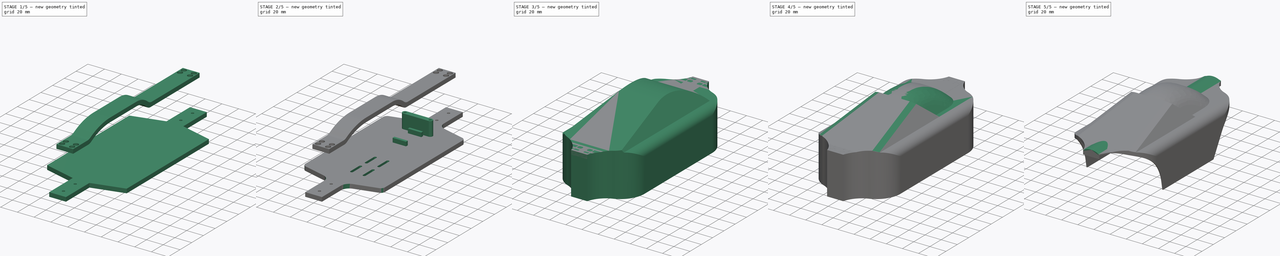
[diagram: build sequence overview — one tinted view per stage of 5, left to right]
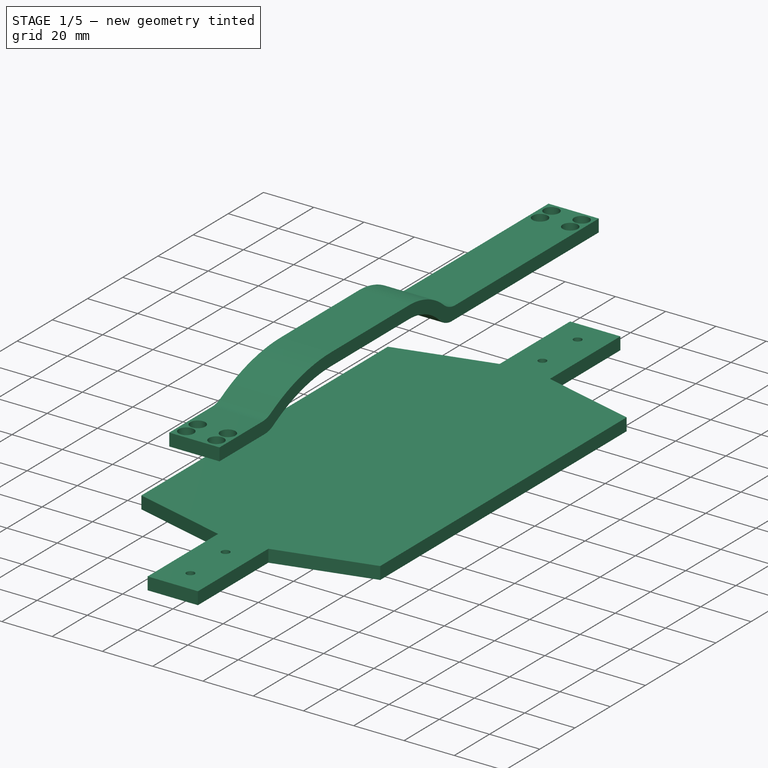
[diagram: stage 1 of 5 — iso view after this stage's code; geometry added in this stage tinted green]
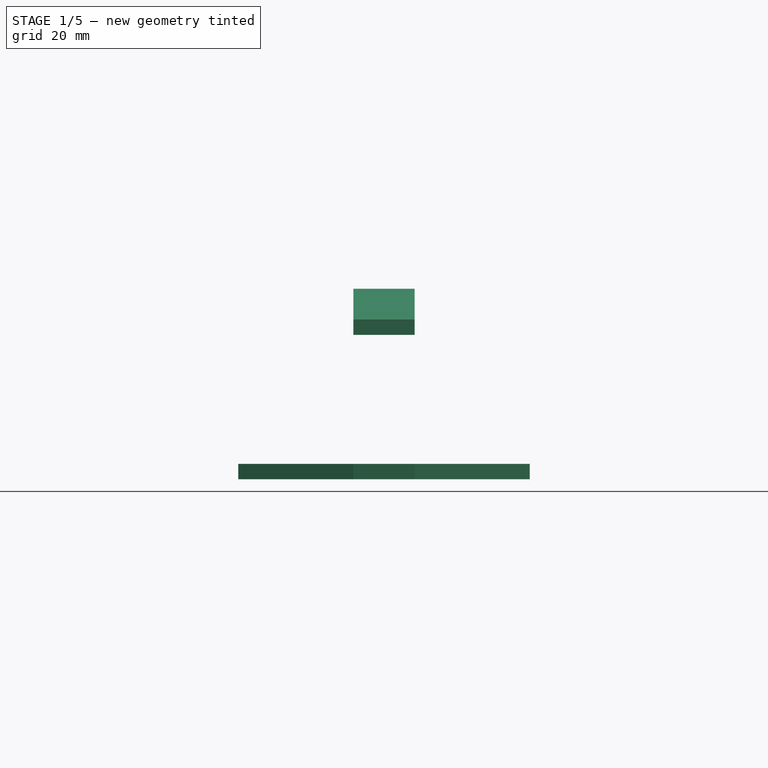
[diagram: stage 1 of 5 — front view after this stage's code; geometry added in this stage tinted green]
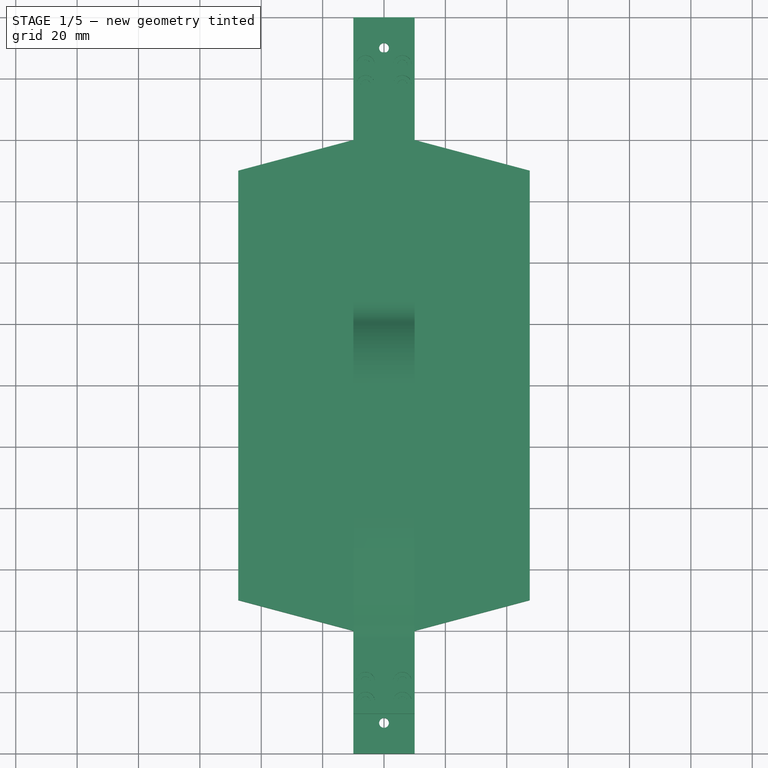
[diagram: stage 1 of 5 — top view after this stage's code; geometry added in this stage tinted green]
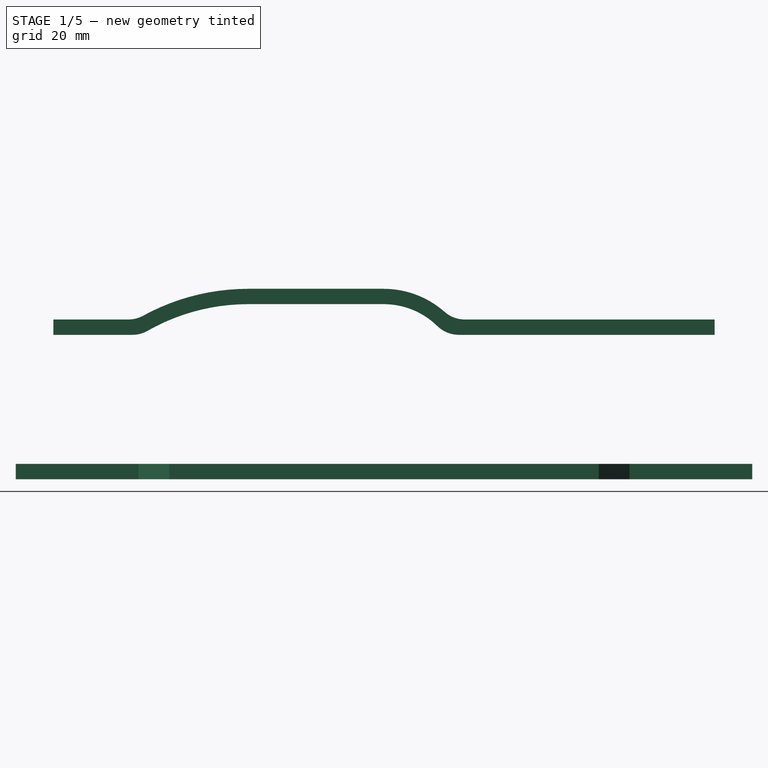
[diagram: stage 1 of 5 — right view after this stage's code; geometry added in this stage tinted green]
FCSTD DOCUMENT  (FreeCAD 2023.131R26244 +5365 (Git))
Label: body_v3
License: All rights reserved
LicenseURL: http://en.wikipedia.org/wiki/All_rights_reserved
objects: Sketcher::SketchObject×16, PartDesign::Pad×7, PartDesign::Fillet×6, PartDesign::Pocket×6, Part::SubShapeBinder×4, PartDesign::Body×3, PartDesign::Mirrored×3, PartDesign::SubShapeBinder×1, PartDesign::Plane×1, PartDesign::SubtractivePipe×1, PartDesign::Chamfer×1, PartDesign::Thickness×1
note: 116 computed .brp shape members not serialized (recipe doc carries the construction recipe); baked Part::Feature solids carry a one-line shape summary decoded from their .brp

FEATURE [Sketcher::SketchObject] Sketch
  ArcFitTolerance = 1e-06
  AttachmentSupport = -> [XY_Plane]
  ExternalBSplineMaxDegree = 5
  ExternalBSplineTolerance = 0.0001
  FixShape = 1
  FullyConstrained = true
  InternalTolerance = 1e-06
  InvalidShape = false
  MakeInternals = false
  MapMode = 5
  Support = -> [XY_Plane]
  TreeRank = 11
  ValidateShape = false
  sketch-geometry (17):
    g0: LineSegment StartX=-10 StartY=120 StartZ=0 EndX=-10 EndY=80 EndZ=0
    g1: LineSegment StartX=-10 StartY=120 StartZ=0 EndX=10 EndY=120 EndZ=0
    g2: LineSegment StartX=10 StartY=120 StartZ=0 EndX=10 EndY=80 EndZ=0
    g3: LineSegment StartX=10 StartY=80 StartZ=0 EndX=47.5 EndY=70 EndZ=0
    g4: LineSegment StartX=-10 StartY=80 StartZ=0 EndX=-47.5 EndY=70 EndZ=0
    g5: LineSegment StartX=-47.5 StartY=70 StartZ=0 EndX=-47.5 EndY=-70 EndZ=0
    g6: LineSegment StartX=-47.5 StartY=-70 StartZ=0 EndX=-10 EndY=-80 EndZ=0
    g7: LineSegment StartX=47.5 StartY=70 StartZ=0 EndX=47.5 EndY=-70 EndZ=0
    g8: LineSegment StartX=47.5 StartY=-70 StartZ=0 EndX=10 EndY=-80 EndZ=0
    g9: LineSegment StartX=10 StartY=-80 StartZ=0 EndX=10 EndY=-120 EndZ=0
    g10: LineSegment StartX=10 StartY=-120 StartZ=0 EndX=-10 EndY=-120 EndZ=0
    g11: LineSegment StartX=-10 StartY=-120 StartZ=0 EndX=-10 EndY=-80 EndZ=0
    g12: Circle CenterX=0 CenterY=-90 CenterZ=0 NormalX=0 NormalY=0 NormalZ=1 AngleXU=0 Radius=1.6
    g13: Circle CenterX=0 CenterY=-110 CenterZ=0 NormalX=0 NormalY=0 NormalZ=1 AngleXU=0 Radius=1.6
    g14: LineSegment [constr] StartX=-10 StartY=100 StartZ=0 EndX=10 EndY=100 EndZ=0
    g15: Circle CenterX=0 CenterY=90 CenterZ=0 NormalX=0 NormalY=0 NormalZ=1 AngleXU=0 Radius=1.6
    g16: Circle CenterX=0 CenterY=110 CenterZ=0 NormalX=0 NormalY=0 NormalZ=1 AngleXU=0 Radius=1.6
  constraints (40):
    c: Coincident(g1,g0)
    c: Coincident(g2,g1)
    c: Vertical(g2)
    c: Coincident(g3,g2)
    c: Coincident(g4,g0)
    c: Coincident(g5,g4)
    c: Coincident(g6,g5)
    c: Coincident(g7,g3)
    c: Coincident(g8,g7)
    c: Coincident(g9,g8)
    c: Coincident(g10,g9)
    c: Coincident(g11,g10)
    c: Coincident(g11,g6)
    c: Symmetric(g0,g10,g-1)
    c: Symmetric(g1,g9,g-1)
    c: Symmetric(g2,g8,g-1)
    c: Symmetric(g0,g6,g-1)
    c: Symmetric(g3,g7,g-1)
    c: Symmetric(g4,g5,g-1)
    c: Symmetric(g4,g3,g-2)
    c: Vertical(g0)
    c: Symmetric(g0,g1,g-2)
    c: DistanceY(g8,g2) = 160
    c: Equal(g2,g0)
    c: DistanceY(g3,g2) = 10
    c: DistanceX(g1,g1) = 20
    c: DistanceY(g2,g2) = 40
    c: Equal(g12,g13)
    c: PointOnObject(g14,g0)
    c: Symmetric(g1,g2,g14)
    c: PointOnObject(g15,g-2)
    c: PointOnObject(g16,g-2)
    c: Equal(g16,g15)
    c: Equal(g15,g13)
    c: Diameter(g12) = 3.2
    c: Symmetric(g16,g15,g14)
    c: Symmetric(g16,g13,g-1)
    c: Symmetric(g12,g15,g-1)
    c: DistanceY(g15,g16) = 20
    c: DistanceX(g5,g7) = 95
FEATURE [PartDesign::Pad] Pad
  AddSubType = 0
  AlongSketchNormal = false
  AutoTaperInnerAngle = true
  CheckUpToFaceLimits = true
  ClaimChildren = false
  Direction = (0,0,1)
  Fit = 0
  FitJoin = 0
  FixShape = 1
  InnerFit = 0
  InnerFitJoin = 0
  InvalidShape = false
  Length = 5
  Length2 = 100
  Linearize = true
  NewSolid = false
  Profile = -> Sketch
  Refine = true
  Suppress = false
  TaperInnerAngle = 0
  TaperInnerAngleRev = 0
  TreeRank = 12
  Type = 0
  ValidateShape = false
  _ProfileBasedVersion = 1
FEATURE [PartDesign::Plane] DatumPlane  label="tower_fixing_surface"
  AttachmentOffset = pos=(0,0,42.0475) rot=(0,0,1;0rad)
  AttachmentSupport = -> [Fillet004]
  FixShape = 1
  InvalidShape = false
  Length = 95
  MapMode = 5
  MinimumLength = 10
  MinimumWidth = 10
  Placement = pos=(0,0,47.0475) rot=(0,0,1;0rad)
  ResizeMode = 0
  Support = -> [Fillet004]
  TreeRank = 73
  ValidateShape = false
  Width = 240
FEATURE [PartDesign::Body] Body  label="body"
  AutoGroupSolids = false
  ClaimAllChildren = false
  ExportMode = 0
  FixShape = 1
  Group = -> [Sketch,Pad,Fillet,Sketch001,Pocket,Sketch002,Pad001,Sketch008,Pad004,Fillet004,DatumPlane]
  InvalidShape = false
  Origin = -> Origin
  Tip = -> Fillet004
  TreeRank = 10
  ValidateShape = false
  _ExportChildren = -> [Pad,Fillet,Pocket,Pad001,Pad004,Fillet004,DatumPlane]
  _GroupVersion = 1
FEATURE [Part::SubShapeBinder] Import002  label="Import002(tower_fixing_surface)"
  BindCopyOnChange = 0
  BindMode = 0
  ClaimChildren = false
  Context = -> Body002 [Import002.]
  EdgeTolerance = 1e-06
  FillStyle = 0
  FixShape = 1
  Fuse = false
  InvalidShape = false
  MakeFace = false
  MergeEdges = true
  OffsetFill = false
  OffsetIntersection = false
  OffsetJoinType = 0
  OffsetOpenResult = false
  Outline = false
  PartialLoad = false
  Relative = true
  SplitEdges = false
  Support = -> [Body[DatumPlane.]]
  TightBound = false
  TreeRank = 85
  ValidateShape = false
  _Version = 8
FEATURE [Part::SubShapeBinder] Import003  label="Import003(Fillet004)"
  BindCopyOnChange = 0
  BindMode = 0
  ClaimChildren = false
  Context = -> Body002 [Import003.]
  EdgeTolerance = 1e-06
  FillStyle = 0
  FixShape = 1
  Fuse = false
  InvalidShape = false
  MakeFace = false
  MergeEdges = true
  OffsetFill = false
  OffsetIntersection = false
  OffsetJoinType = 0
  OffsetOpenResult = false
  Outline = false
  PartialLoad = false
  Relative = true
  SplitEdges = false
  Support = -> [Body[Fillet004.]]
  TightBound = false
  TreeRank = 86
  ValidateShape = false
  _Version = 8
FEATURE [Sketcher::SketchObject] Sketch019
  ArcFitTolerance = 1e-06
  AttachmentSupport = -> [YZ_Plane002]
  ExternalBSplineMaxDegree = 5
  ExternalBSplineTolerance = 0.0001
  ExternalGeometry = -> [Import002,Import003]
  FixShape = 1
  FullyConstrained = true
  InternalTolerance = 1e-06
  InvalidShape = false
  MakeInternals = false
  MapMode = 5
  Placement = pos=(0,0,0) rot=(0.57735,0.57735,0.57735;2.0944rad)
  Support = -> [YZ_Plane002]
  TreeRank = 84
  ValidateShape = false
  sketch-geometry (17):
    g0: LineSegment StartX=92.25 StartY=47.0475 StartZ=0 EndX=107.75 EndY=47.0475 EndZ=0
    g1: LineSegment [constr] StartX=-100 StartY=5 StartZ=0 EndX=-100 EndY=47.0475 EndZ=0
    g2: LineSegment StartX=-107.75 StartY=47.0475 StartZ=0 EndX=-107.75 EndY=52.0475 EndZ=0
    g3: LineSegment StartX=107.75 StartY=47.0475 StartZ=0 EndX=107.75 EndY=52.0475 EndZ=0
    g4: LineSegment StartX=107.75 StartY=52.0475 StartZ=0 EndX=92.25 EndY=52.0475 EndZ=0
    g5: LineSegment StartX=92.25 StartY=52.0475 StartZ=0 EndX=22.25 EndY=52.0475 EndZ=0
    g6: LineSegment StartX=19.8893 StartY=47.0475 StartZ=0 EndX=92.25 EndY=47.0475 EndZ=0
    g7: ArcOfCircle CenterX=-44.25 CenterY=-9.2025 CenterZ=0 NormalX=0 NormalY=0 NormalZ=1 AngleXU=0 Radius=71.25 StartAngle=1.5708 EndAngle=2.10701
    g8: ArcOfCircle CenterX=-0.11068 CenterY=32.0475 CenterZ=0 NormalX=0 NormalY=0 NormalZ=1 AngleXU=0 Radius=30 StartAngle=0.729728 EndAngle=1.5708
    g9: ArcOfCircle CenterX=-0.11068 CenterY=32.0475 CenterZ=0 NormalX=0 NormalY=0 NormalZ=1 AngleXU=0 Radius=25 StartAngle=0.643501 EndAngle=1.5708
    g10: ArcOfCircle CenterX=-44.25 CenterY=-9.2025 CenterZ=0 NormalX=0 NormalY=0 NormalZ=1 AngleXU=0 Radius=66.25 StartAngle=1.5708 EndAngle=2.1274
    g11: LineSegment StartX=-44.25 StartY=62.0475 StartZ=0 EndX=-0.11068 EndY=62.0475 EndZ=0
    g12: LineSegment StartX=-44.25 StartY=57.0475 StartZ=0 EndX=-0.11068 EndY=57.0475 EndZ=0
    g13: LineSegment [constr] StartX=-44.25 StartY=57.0475 StartZ=0 EndX=-44.25 EndY=62.0475 EndZ=0
    g14: LineSegment StartX=-107.75 StartY=47.0475 StartZ=0 EndX=-92.25 EndY=47.0475 EndZ=0
    g15: LineSegment StartX=-107.75 StartY=52.0475 StartZ=0 EndX=-80.6505 EndY=52.0475 EndZ=0
    g16: LineSegment StartX=-92.25 StartY=47.0475 StartZ=0 EndX=-79.25 EndY=47.0475 EndZ=0
  constraints (45):
    c: PointOnObject(g2,g-3)
    c: PointOnObject(g10,g-3)
    c: Vertical(g1)
    c: Symmetric(g-5,g-4,g1)
    c: Symmetric(g2,g0,g-2)
    c: Vertical(g2)
    c: Coincident(g3,g0)
    c: Coincident(g4,g3)
    c: Horizontal(g4)
    c: Vertical(g3)
    c: Vertical(g0,g4)
    c: Coincident(g5,g4)
    c: Horizontal(g5)
    c: Horizontal(g2,g3)
    c: DistanceY(g2,g2) = 5
    c: Coincident(g6,g0)
    c: Horizontal(g6)
    c: DistanceX(g5,g5) = 70
    c: Coincident(g8,g5)
    c: Coincident(g9,g6)
    c: Coincident(g10,g7)
    c: Coincident(g9,g8)
    c: Horizontal(g12)
    c: Horizontal(g11)
    c: Tangent(g12,g10) = 1.5708
    c: Tangent(g12,g9) = 1.5708
    c: Tangent(g11,g8) = 1.5708
    c: Tangent(g11,g7) = 1.5708
    c: Coincident(g13,g10)
    c: Coincident(g13,g7)
    c: Equal(g2,g13)
    c: DistanceY(g6,g9) = 10
    c: DistanceX(g9,g6) = 20
    c: Coincident(g14,g2)
    c: Coincident(g15,g2)
    c: Horizontal(g15)
    c: Horizontal(g14)
    c: DistanceX(g14,g14) = 15.5
    c: Coincident(g15,g7)
    c: Coincident(g16,g14)
    c: Coincident(g16,g10)
    c: DistanceX(g16,g16) = 13
    c: Symmetric(g2,g14,g1)
    c: Symmetric(g14,g0,g-2)
    c: DistanceX(g10,g10) = 35
FEATURE [PartDesign::Pad] Pad008
  AddSubType = 0
  AlongSketchNormal = false
  AutoTaperInnerAngle = true
  CheckUpToFaceLimits = true
  ClaimChildren = false
  Direction = (1,-2e-16,3e-16)
  Fit = 0
  FitJoin = 0
  FixShape = 1
  InnerFit = 0
  InnerFitJoin = 0
  InvalidShape = false
  Length = 20
  Length2 = 100
  Linearize = true
  Midplane = true
  NewSolid = false
  Profile = -> Sketch019
  Refine = true
  Suppress = false
  TaperInnerAngle = 0
  TaperInnerAngleRev = 0
  TreeRank = 87
  Type = 0
  ValidateShape = false
  _ProfileBasedVersion = 1
FEATURE [PartDesign::Fillet] Fillet005
  AddSubType = 0
  Base = -> Pad008 [Edge16,Edge32,Edge21,Edge28]
  BaseFeature = -> Pad008
  FixShape = 1
  InvalidShape = false
  NewSolid = false
  Radius = 10
  Refine = true
  SupportTransform = false
  Suppress = false
  TreeRank = 88
  ValidateShape = false
FEATURE [PartDesign::Body] Body001  label="shell"
  AutoGroupSolids = false
  ClaimAllChildren = false
  ExportMode = 0
  FixShape = 1
  Group = -> [Import001,Import,Sketch009,Sketch010,Pad005,Mirrored,Sketch011,Pocket004,Mirrored001,Sketch013,Pocket006,Sketch017,Sketch018,Pipe,Fillet001,Chamfer,Mirrored002,Thickness,Sketch014,Pocket007,Sketch015,Pad006,Sketch016,Pad007,Fillet002,Fillet003,Import004]
  InvalidShape = false
  Origin = -> Origin001
  Tip = -> Fillet003
  TreeRank = 43
  ValidateShape = false
  _ExportChildren = -> [Import001,Import,Sketch009,Pad005,Mirrored,Pocket004,Mirrored001,Pocket006,Pipe,Fillet001,Chamfer,Mirrored002,Thickness,Pocket007,Pad006,Pad007,Fillet002,Fillet003,Import004]
  _GroupVersion = 1
FEATURE [Sketcher::SketchObject] Sketch020
  ArcFitTolerance = 1e-06
  AttachmentSupport = -> [XY_Plane002]
  ExternalBSplineMaxDegree = 5
  ExternalBSplineTolerance = 0.0001
  ExternalGeometry = -> [Sketch019]
  FixShape = 1
  FullyConstrained = true
  InternalTolerance = 1e-06
  InvalidShape = false
  MakeInternals = false
  MapMode = 5
  Support = -> [XY_Plane002]
  TreeRank = 90
  ValidateShape = false
  sketch-geometry (8):
    g0: Circle CenterX=-6 CenterY=97.25 CenterZ=0 NormalX=0 NormalY=0 NormalZ=1 AngleXU=0 Radius=1.6
    g1: Circle CenterX=6 CenterY=97.25 CenterZ=0 NormalX=0 NormalY=0 NormalZ=1 AngleXU=0 Radius=1.6
    g2: Circle CenterX=-6 CenterY=-97.25 CenterZ=0 NormalX=0 NormalY=0 NormalZ=1 AngleXU=0 Radius=1.6
    g3: Circle CenterX=6 CenterY=-97.25 CenterZ=0 NormalX=0 NormalY=0 NormalZ=1 AngleXU=0 Radius=1.6
    g4: Circle CenterX=6 CenterY=-103.75 CenterZ=0 NormalX=0 NormalY=0 NormalZ=1 AngleXU=0 Radius=1.6
    g5: Circle CenterX=-6 CenterY=-103.75 CenterZ=0 NormalX=0 NormalY=0 NormalZ=1 AngleXU=0 Radius=1.6
    g6: Circle CenterX=-6 CenterY=103.75 CenterZ=0 NormalX=0 NormalY=0 NormalZ=1 AngleXU=0 Radius=1.6
    g7: Circle CenterX=6 CenterY=103.75 CenterZ=0 NormalX=0 NormalY=0 NormalZ=1 AngleXU=0 Radius=1.6
  constraints (19):
    c: Diameter(g3) = 3.2
    c: Equal(g2,g3)
    c: Equal(g0,g1)
    c: Symmetric(g2,g3,g-2)
    c: Symmetric(g2,g0,g-1)
    c: Symmetric(g1,g3,g-1)
    c: DistanceX(g2,g3) = 12
    c: Equal(g5,g4)
    c: Vertical(g5,g2)
    c: Vertical(g4,g3)
    c: Equal(g7,g6)
    c: Equal(g6,g1)
    c: Symmetric(g6,g5,g-1)
    c: Symmetric(g7,g4,g-1)
    c: DistanceY(g-4,g4) = 4
    c: DistanceY(g4,g3) = 6.5
    c: Equal(g4,g3)
    c: Horizontal(g5,g4)
    c: Equal(g1,g4)
FEATURE [PartDesign::Pocket] Pocket008
  AddSubType = 1
  AutoTaperInnerAngle = true
  BaseFeature = -> Fillet005
  CheckUpToFaceLimits = true
  ClaimChildren = false
  Fit = 0
  FitJoin = 0
  FixShape = 1
  InnerFit = 0
  InnerFitJoin = 0
  InvalidShape = false
  Length = 5
  Length2 = 100
  Linearize = true
  Midplane = true
  NewSolid = false
  Profile = -> Sketch020
  Refine = true
  Suppress = false
  TaperInnerAngle = 0
  TaperInnerAngleRev = 0
  TreeRank = 91
  Type = 1
  ValidateShape = false
  _ProfileBasedVersion = 1
  _Version = 1
FEATURE [Sketcher::SketchObject] Sketch021
  ArcFitTolerance = 1e-06
  AttachmentSupport = -> [Pocket008]
  ExternalBSplineMaxDegree = 5
  ExternalBSplineTolerance = 0.0001
  ExternalGeometry = -> [Pocket008]
  FixShape = 1
  FullyConstrained = true
  InternalTolerance = 1e-06
  InvalidShape = false
  MakeInternals = false
  MapMode = 5
  Placement = pos=(-3.6e-15,9.9e-15,52.0475) rot=(0,0,1;0rad)
  Support = -> [Pocket008]
  TreeRank = 92
  ValidateShape = false
  sketch-geometry (8):
    g0: Circle CenterX=-6 CenterY=-97.25 CenterZ=0 NormalX=0 NormalY=0 NormalZ=1 AngleXU=0 Radius=3
    g1: Circle CenterX=6 CenterY=-97.25 CenterZ=0 NormalX=0 NormalY=0 NormalZ=1 AngleXU=0 Radius=3
    g2: Circle CenterX=-6 CenterY=97.25 CenterZ=0 NormalX=0 NormalY=0 NormalZ=1 AngleXU=0 Radius=3
    g3: Circle CenterX=6 CenterY=97.25 CenterZ=0 NormalX=0 NormalY=0 NormalZ=1 AngleXU=0 Radius=3
    g4: Circle CenterX=6 CenterY=103.75 CenterZ=0 NormalX=0 NormalY=0 NormalZ=1 AngleXU=0 Radius=3
    g5: Circle CenterX=-6 CenterY=103.75 CenterZ=0 NormalX=0 NormalY=0 NormalZ=1 AngleXU=0 Radius=3
    g6: Circle CenterX=-6 CenterY=-103.75 CenterZ=0 NormalX=0 NormalY=0 NormalZ=1 AngleXU=0 Radius=3
    g7: Circle CenterX=6 CenterY=-103.75 CenterZ=0 NormalX=0 NormalY=0 NormalZ=1 AngleXU=0 Radius=3
  constraints (16):
    c: Coincident(g0,g-6)
    c: Coincident(g1,g-5)
    c: Coincident(g2,g-4)
    c: Coincident(g3,g-3)
    c: Equal(g2,g1)
    c: Diameter(g1) = 6
    c: Coincident(g4,g-10)
    c: Coincident(g5,g-9)
    c: Coincident(g6,g-7)
    c: Coincident(g7,g-8)
    c: Equal(g1,g7)
    c: Equal(g7,g6)
    c: Equal(g6,g4)
    c: Equal(g4,g5)
    c: Equal(g3,g4)
    c: Equal(g6,g0)
FEATURE [PartDesign::Pocket] Pocket009
  AddSubType = 1
  AutoTaperInnerAngle = true
  BaseFeature = -> Pocket008
  CheckUpToFaceLimits = true
  ClaimChildren = false
  Fit = 0
  FitJoin = 0
  FixShape = 1
  InnerFit = 0
  InnerFitJoin = 0
  InvalidShape = false
  Length = 3
  Length2 = 100
  Linearize = true
  NewSolid = false
  Profile = -> Sketch021
  Refine = true
  Suppress = false
  TaperInnerAngle = 0
  TaperInnerAngleRev = 0
  TreeRank = 93
  Type = 0
  ValidateShape = false
  _ProfileBasedVersion = 1
  _Version = 1
FEATURE [PartDesign::Body] Body002  label="strengthener_bar"
  AutoGroupSolids = false
  ClaimAllChildren = false
  ExportMode = 0
  FixShape = 1
  Group = -> [Import003,Import002,Sketch019,Pad008,Fillet005,Sketch020,Pocket008,Sketch021,Pocket009]
  InvalidShape = false
  Origin = -> Origin002
  Tip = -> Pocket009
  TreeRank = 83
  ValidateShape = false
  _ExportChildren = -> [Import003,Import002,Pad008,Fillet005,Pocket008,Pocket009]
  _GroupVersion = 1
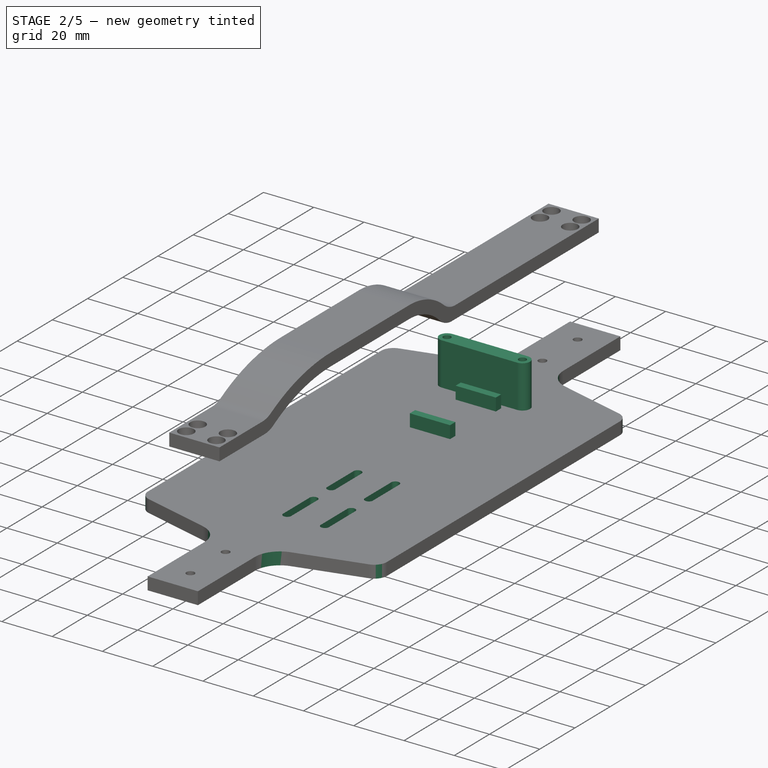
[diagram: stage 2 of 5 — iso view after this stage's code; geometry added in this stage tinted green]
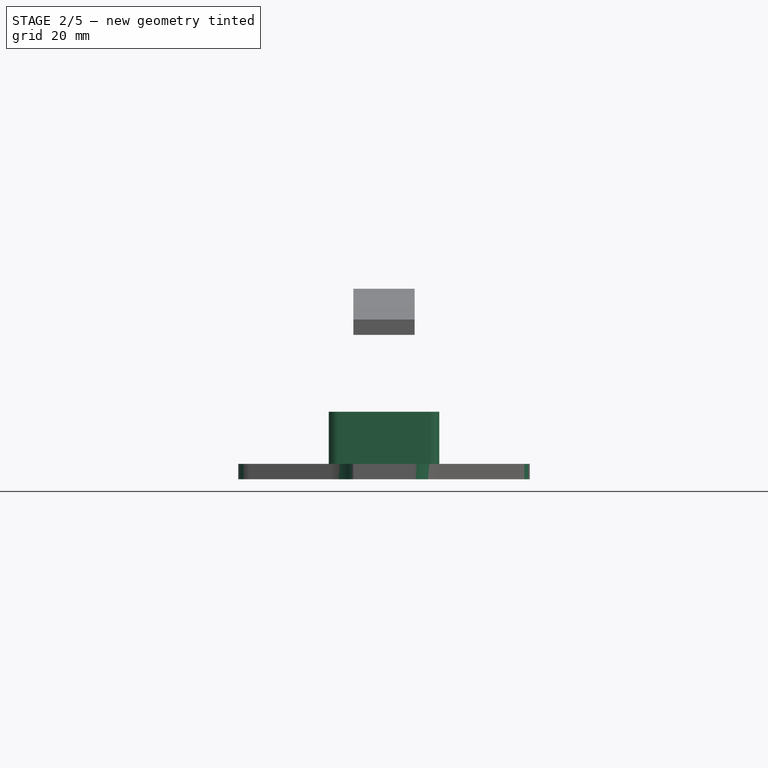
[diagram: stage 2 of 5 — front view after this stage's code; geometry added in this stage tinted green]
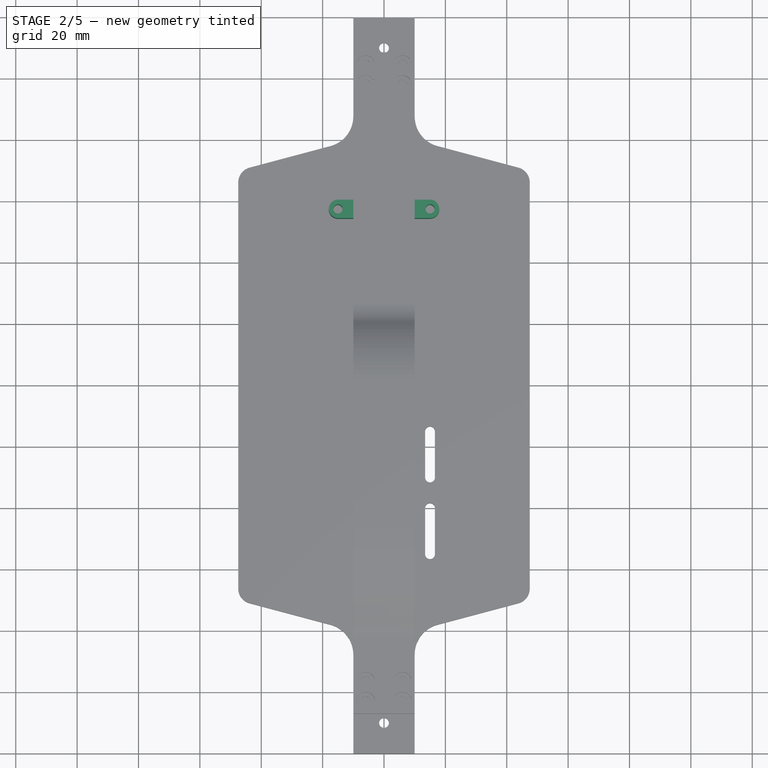
[diagram: stage 2 of 5 — top view after this stage's code; geometry added in this stage tinted green]
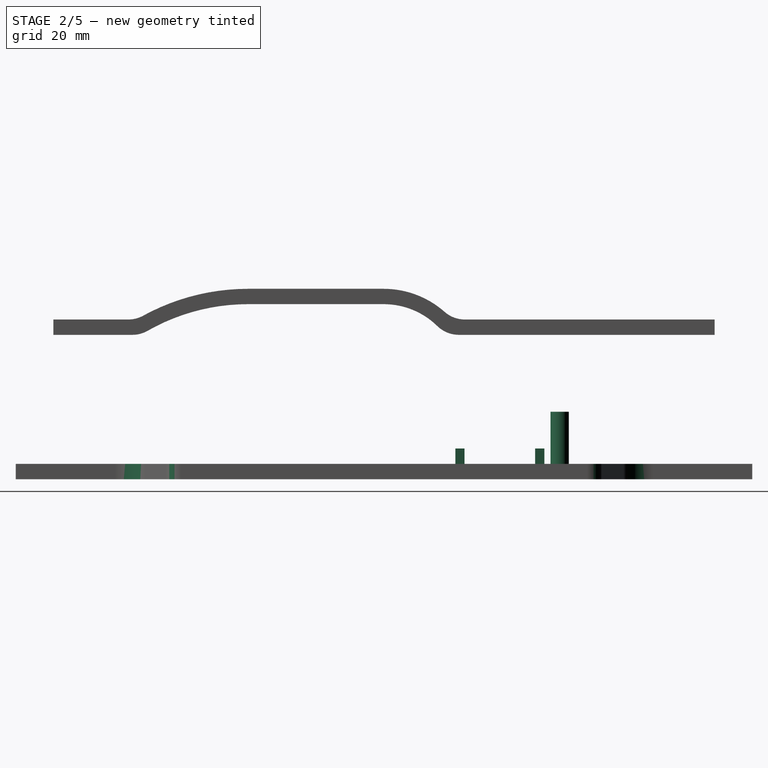
[diagram: stage 2 of 5 — right view after this stage's code; geometry added in this stage tinted green]
FEATURE [Sketcher::SketchObject] Sketch001
  ArcFitTolerance = 1e-06
  AttachmentSupport = -> [Pad]
  ExternalBSplineMaxDegree = 5
  ExternalBSplineTolerance = 0.0001
  ExternalGeometry = -> [Pad]
  FixShape = 1
  FullyConstrained = true
  InternalTolerance = 1e-06
  InvalidShape = false
  MakeInternals = false
  MapMode = 5
  Placement = pos=(0,0,5) rot=(0,0,1;0rad)
  Support = -> [Pad]
  TreeRank = 13
  ValidateShape = false
  sketch-geometry (20):
    g0: ArcOfCircle CenterX=0 CenterY=-30 CenterZ=0 NormalX=0 NormalY=0 NormalZ=1 AngleXU=0 Radius=1.6 StartAngle=3.14159 EndAngle=6.28319
    g1: ArcOfCircle CenterX=0 CenterY=-15 CenterZ=0 NormalX=0 NormalY=0 NormalZ=1 AngleXU=0 Radius=1.6 StartAngle=4e-16 EndAngle=3.14159
    g2: LineSegment StartX=1.6 StartY=-30 StartZ=0 EndX=1.6 EndY=-15 EndZ=0
    g3: LineSegment StartX=-1.6 StartY=-15 StartZ=0 EndX=-1.6 EndY=-30 EndZ=0
    g4: ArcOfCircle CenterX=0 CenterY=-55 CenterZ=0 NormalX=0 NormalY=0 NormalZ=1 AngleXU=0 Radius=1.6 StartAngle=3.14159 EndAngle=6.28319
    g5: ArcOfCircle CenterX=0 CenterY=-40 CenterZ=0 NormalX=0 NormalY=0 NormalZ=1 AngleXU=0 Radius=1.6 StartAngle=-1.8e-15 EndAngle=3.14159
    g6: LineSegment StartX=1.6 StartY=-55 StartZ=0 EndX=1.6 EndY=-40 EndZ=0
    g7: LineSegment StartX=-1.6 StartY=-40 StartZ=0 EndX=-1.6 EndY=-55 EndZ=0
    g8: ArcOfCircle CenterX=15 CenterY=-55 CenterZ=0 NormalX=0 NormalY=0 NormalZ=1 AngleXU=0 Radius=1.6 StartAngle=3.14159 EndAngle=6.28319
    g9: ArcOfCircle CenterX=15 CenterY=-40 CenterZ=0 NormalX=0 NormalY=0 NormalZ=1 AngleXU=0 Radius=1.6 StartAngle=2.2e-15 EndAngle=3.14159
    g10: LineSegment StartX=16.6 StartY=-55 StartZ=0 EndX=16.6 EndY=-40 EndZ=0
    g11: LineSegment StartX=13.4 StartY=-40 StartZ=0 EndX=13.4 EndY=-55 EndZ=0
    g12: ArcOfCircle CenterX=15 CenterY=-30 CenterZ=0 NormalX=0 NormalY=0 NormalZ=1 AngleXU=0 Radius=1.6 StartAngle=3.14159 EndAngle=6.28319
    g13: ArcOfCircle CenterX=15 CenterY=-15 CenterZ=0 NormalX=0 NormalY=0 NormalZ=1 AngleXU=0 Radius=1.6 StartAngle=5e-16 EndAngle=3.14159
    g14: LineSegment StartX=16.6 StartY=-30 StartZ=0 EndX=16.6 EndY=-15 EndZ=0
    g15: LineSegment StartX=13.4 StartY=-15 StartZ=0 EndX=13.4 EndY=-30 EndZ=0
    g16: LineSegment [constr] StartX=15 StartY=-30 StartZ=0 EndX=15 EndY=-15 EndZ=0
    g17: LineSegment [constr] StartX=0 StartY=-30 StartZ=0 EndX=0 EndY=-15 EndZ=0
    g18: LineSegment [constr] StartX=0 StartY=-55 StartZ=0 EndX=0 EndY=-40 EndZ=0
    g19: LineSegment [constr] StartX=15 StartY=-55 StartZ=0 EndX=15 EndY=-40 EndZ=0
  constraints (48):
    c: Tangent(g0,g2) = -1.5708
    c: Tangent(g2,g1) = -1.5708
    c: Tangent(g1,g3) = -1.5708
    c: Tangent(g3,g0) = -1.5708
    c: Equal(g0,g1)
    c: PointOnObject(g0,g-2)
    c: PointOnObject(g1,g-2)
    c: Tangent(g4,g6) = -1.5708
    c: Tangent(g6,g5) = -1.5708
    c: Tangent(g5,g7) = -1.5708
    c: Tangent(g7,g4) = -1.5708
    c: Equal(g4,g5)
    c: PointOnObject(g4,g-2)
    c: PointOnObject(g5,g-2)
    c: Tangent(g8,g10) = -1.5708
    c: Tangent(g10,g9) = -1.5708
    c: Tangent(g9,g11) = -1.5708
    c: Tangent(g11,g8) = -1.5708
    c: Equal(g8,g9)
    c: Tangent(g12,g14) = -1.5708
    c: Tangent(g14,g13) = -1.5708
    c: Tangent(g13,g15) = -1.5708
    c: Tangent(g15,g12) = -1.5708
    c: Equal(g12,g13)
    c: Vertical(g8,g9)
    c: Equal(g5,g9)
    c: Equal(g9,g12)
    c: Equal(g12,g0)
    c: Radius(g0) = 1.6
    c: Horizontal(g4,g8)
    c: Horizontal(g0,g12)
    c: Vertical(g12,g8)
    c: Vertical(g12,g13)
    c: Coincident(g16,g12)
    c: Coincident(g16,g13)
    c: Coincident(g17,g0)
    c: Coincident(g17,g1)
    c: Coincident(g18,g4)
    c: Coincident(g18,g5)
    c: Coincident(g19,g8)
    c: Coincident(g19,g9)
    c: Equal(g19,g18)
    c: Equal(g18,g17)
    c: Equal(g17,g16)
    c: DistanceX(g4,g8) = 15
    c: DistanceY(g8,g12) = 25
    c: DistanceY(g16,g16) = 15
    c: DistanceY(g-3,g4) = 25
FEATURE [PartDesign::Fillet] Fillet
  AddSubType = 0
  Base = -> Pad [Edge5,Edge26,Edge8,Edge23]
  BaseFeature = -> Pad
  FixShape = 1
  InvalidShape = false
  NewSolid = false
  Radius = 5
  Refine = true
  SupportTransform = false
  Suppress = false
  TreeRank = 31
  ValidateShape = false
FEATURE [PartDesign::Pocket] Pocket
  AddSubType = 1
  AutoTaperInnerAngle = true
  BaseFeature = -> Fillet
  CheckUpToFaceLimits = true
  ClaimChildren = false
  Fit = 0
  FitJoin = 0
  FixShape = 1
  InnerFit = 0
  InnerFitJoin = 0
  InvalidShape = false
  Length = 5
  Length2 = 100
  Linearize = true
  NewSolid = false
  Profile = -> Sketch001
  Refine = true
  Suppress = false
  TaperInnerAngle = 0
  TaperInnerAngleRev = 0
  TreeRank = 14
  Type = 1
  ValidateShape = false
  _ProfileBasedVersion = 1
  _Version = 1
FEATURE [Sketcher::SketchObject] Sketch002
  ArcFitTolerance = 1e-06
  AttachmentSupport = -> [Pocket]
  ExternalBSplineMaxDegree = 5
  ExternalBSplineTolerance = 0.0001
  ExternalGeometry = -> [Pocket]
  FixShape = 1
  FullyConstrained = true
  InternalTolerance = 1e-06
  InvalidShape = false
  MakeInternals = false
  MapMode = 5
  Placement = pos=(0,0,5) rot=(0,0,1;0rad)
  Support = -> [Pocket]
  TreeRank = 15
  ValidateShape = false
  sketch-geometry (9):
    g0: LineSegment [constr] StartX=0 StartY=80 StartZ=0 EndX=0 EndY=57.25 EndZ=0
    g1: LineSegment [constr] StartX=0 StartY=57.25 StartZ=0 EndX=15 EndY=57.25 EndZ=0
    g2: LineSegment [constr] StartX=0 StartY=57.25 StartZ=0 EndX=-15 EndY=57.25 EndZ=0
    g3: ArcOfCircle CenterX=-15 CenterY=57.25 CenterZ=0 NormalX=0 NormalY=0 NormalZ=1 AngleXU=0 Radius=3 StartAngle=1.5708 EndAngle=4.71239
    g4: ArcOfCircle CenterX=15 CenterY=57.25 CenterZ=0 NormalX=0 NormalY=0 NormalZ=1 AngleXU=0 Radius=3 StartAngle=4.71239 EndAngle=7.85398
    g5: LineSegment StartX=-15 StartY=54.25 StartZ=0 EndX=15 EndY=54.25 EndZ=0
    g6: LineSegment StartX=15 StartY=60.25 StartZ=0 EndX=-15 EndY=60.25 EndZ=0
    g7: Circle CenterX=15 CenterY=57.25 CenterZ=0 NormalX=0 NormalY=0 NormalZ=1 AngleXU=0 Radius=1.5
    g8: Circle CenterX=-15 CenterY=57.25 CenterZ=0 NormalX=0 NormalY=0 NormalZ=1 AngleXU=0 Radius=1.5
  constraints (22):
    c: PointOnObject(g0,g-2)
    c: PointOnObject(g0,g-2)
    c: Coincident(g1,g0)
    c: Coincident(g2,g0)
    c: Horizontal(g2)
    c: Horizontal(g1)
    c: DistanceY(g0,g0) = 22.75
    c: DistanceX(g2,g1) = 30
    c: Horizontal(g0,g-3)
    c: Equal(g1,g2)
    c: Tangent(g3,g5) = -1.5708
    c: Tangent(g5,g4) = -1.5708
    c: Tangent(g4,g6) = -1.5708
    c: Tangent(g6,g3) = -1.5708
    c: Equal(g3,g4)
    c: Coincident(g3,g2)
    c: Coincident(g4,g1)
    c: DistanceY(g4,g4) = 6
    c: Coincident(g7,g4)
    c: Coincident(g8,g3)
    c: Equal(g8,g7)
    c: Diameter(g8) = 3
FEATURE [PartDesign::Pad] Pad001
  AddSubType = 0
  AlongSketchNormal = false
  AutoTaperInnerAngle = true
  BaseFeature = -> Pocket
  CheckUpToFaceLimits = true
  ClaimChildren = false
  Direction = (0,0,1)
  Fit = 0
  FitJoin = 0
  FixShape = 1
  InnerFit = 0
  InnerFitJoin = 0
  InvalidShape = false
  Length = 17
  Length2 = 100
  Linearize = true
  NewSolid = false
  Profile = -> Sketch002
  Refine = true
  Suppress = false
  TaperInnerAngle = 0
  TaperInnerAngleRev = 0
  TreeRank = 16
  Type = 0
  ValidateShape = false
  _ProfileBasedVersion = 1
FEATURE [Sketcher::SketchObject] Sketch008
  ArcFitTolerance = 1e-06
  AttachmentSupport = -> [Pad001]
  ExternalBSplineMaxDegree = 5
  ExternalBSplineTolerance = 0.0001
  ExternalGeometry = -> [Pad001]
  FixShape = 1
  FullyConstrained = true
  InternalTolerance = 1e-06
  InvalidShape = false
  MakeInternals = false
  MapMode = 5
  Placement = pos=(0,0,5) rot=(0,0,1;0rad)
  Support = -> [Pad001]
  TreeRank = 32
  ValidateShape = false
  sketch-geometry (9):
    g0: LineSegment StartX=-6 StartY=52.25 StartZ=0 EndX=10 EndY=52.25 EndZ=0
    g1: LineSegment StartX=10 StartY=52.25 StartZ=0 EndX=10 EndY=49.25 EndZ=0
    g2: LineSegment StartX=10 StartY=49.25 StartZ=0 EndX=-6 EndY=49.25 EndZ=0
    g3: LineSegment StartX=-6 StartY=49.25 StartZ=0 EndX=-6 EndY=52.25 EndZ=0
    g4: LineSegment StartX=-6 StartY=26.25 StartZ=0 EndX=10 EndY=26.25 EndZ=0
    g5: LineSegment StartX=10 StartY=26.25 StartZ=0 EndX=10 EndY=23.25 EndZ=0
    g6: LineSegment StartX=10 StartY=23.25 StartZ=0 EndX=-6 EndY=23.25 EndZ=0
    g7: LineSegment StartX=-6 StartY=23.25 StartZ=0 EndX=-6 EndY=26.25 EndZ=0
    g8: GeomPoint [constr] X=24 Y=32.25 Z=0
  constraints (26):
    c: Coincident(g0,g1)
    c: Coincident(g1,g2)
    c: Coincident(g2,g3)
    c: Coincident(g3,g0)
    c: Horizontal(g0)
    c: Horizontal(g2)
    c: Vertical(g1)
    c: Vertical(g3)
    c: Coincident(g4,g5)
    c: Coincident(g5,g6)
    c: Coincident(g6,g7)
    c: Coincident(g7,g4)
    c: Horizontal(g4)
    c: Horizontal(g6)
    c: Vertical(g5)
    c: Vertical(g7)
    c: Vertical(g4,g1)
    c: Vertical(g4,g2)
    c: Equal(g1,g5)
    c: DistanceY(g4,g1) = 23
    c: DistanceY(g4,g8) = 6
    c: DistanceX(g0,g0) = 16
    c: DistanceY(g8,g-3) = 25
    c: DistanceY(g1,g1) = 3
    c: DistanceX(g4,g8) = 14
    c: DistanceX(g-3,g8) = 9
FEATURE [PartDesign::Pad] Pad004
  AddSubType = 0
  AlongSketchNormal = false
  AutoTaperInnerAngle = true
  BaseFeature = -> Pad001
  CheckUpToFaceLimits = true
  ClaimChildren = false
  Direction = (0,0,1)
  Fit = 0
  FitJoin = 0
  FixShape = 1
  InnerFit = 0
  InnerFitJoin = 0
  InvalidShape = false
  Length = 5
  Length2 = 100
  Linearize = true
  NewSolid = false
  Profile = -> Sketch008
  Refine = true
  Suppress = false
  TaperInnerAngle = 0
  TaperInnerAngleRev = 0
  TreeRank = 33
  Type = 0
  ValidateShape = false
  _ProfileBasedVersion = 1
FEATURE [Part::SubShapeBinder] Import  label="Import(Pad004)"
  BindCopyOnChange = 0
  BindMode = 0
  ClaimChildren = false
  Context = -> Body001 [Import.]
  EdgeTolerance = 1e-06
  FillStyle = 0
  FixShape = 1
  Fuse = false
  InvalidShape = false
  MakeFace = false
  MergeEdges = true
  OffsetFill = false
  OffsetIntersection = false
  OffsetJoinType = 0
  OffsetOpenResult = false
  Outline = false
  PartialLoad = false
  Relative = true
  SplitEdges = false
  Support = -> [Body[Pad004.]]
  TightBound = false
  TreeRank = 45
  ValidateShape = false
  _Version = 8
FEATURE [PartDesign::SubShapeBinder] Import001  label="Import001(Pad004)..."
  BindCopyOnChange = 0
  BindMode = 0
  ClaimChildren = false
  Context = -> Body001 [Import001.]
  EdgeTolerance = 1e-06
  FillStyle = 0
  FixShape = 1
  Fuse = false
  InvalidShape = false
  MakeFace = false
  MergeEdges = true
  OffsetFill = false
  OffsetIntersection = false
  OffsetJoinType = 0
  OffsetOpenResult = false
  Outline = false
  PartialLoad = false
  Relative = true
  SplitEdges = false
  Support = -> [Body[Pad004.Face15],Sketch009]
  TightBound = false
  TreeRank = 48
  ValidateShape = false
  _Version = 8
FEATURE [PartDesign::Fillet] Fillet004
  AddSubType = 0
  Base = -> Pad004 [Edge92,Edge3,Edge93,Edge99]
  BaseFeature = -> Pad004
  FixShape = 1
  InvalidShape = false
  NewSolid = false
  Radius = 10
  Refine = true
  SupportTransform = false
  Suppress = false
  TreeRank = 72
  ValidateShape = false
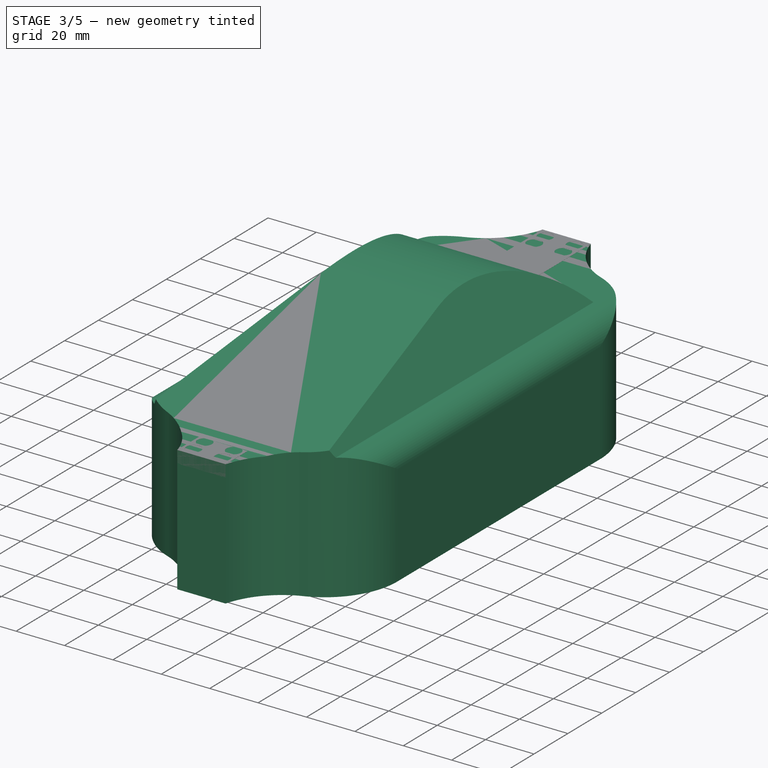
[diagram: stage 3 of 5 — iso view after this stage's code; geometry added in this stage tinted green]
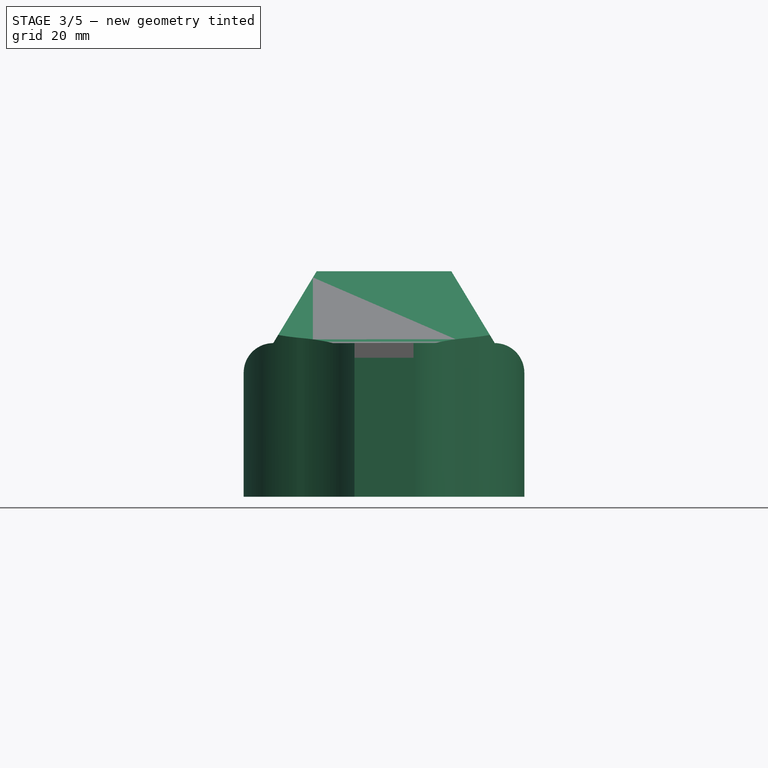
[diagram: stage 3 of 5 — front view after this stage's code; geometry added in this stage tinted green]
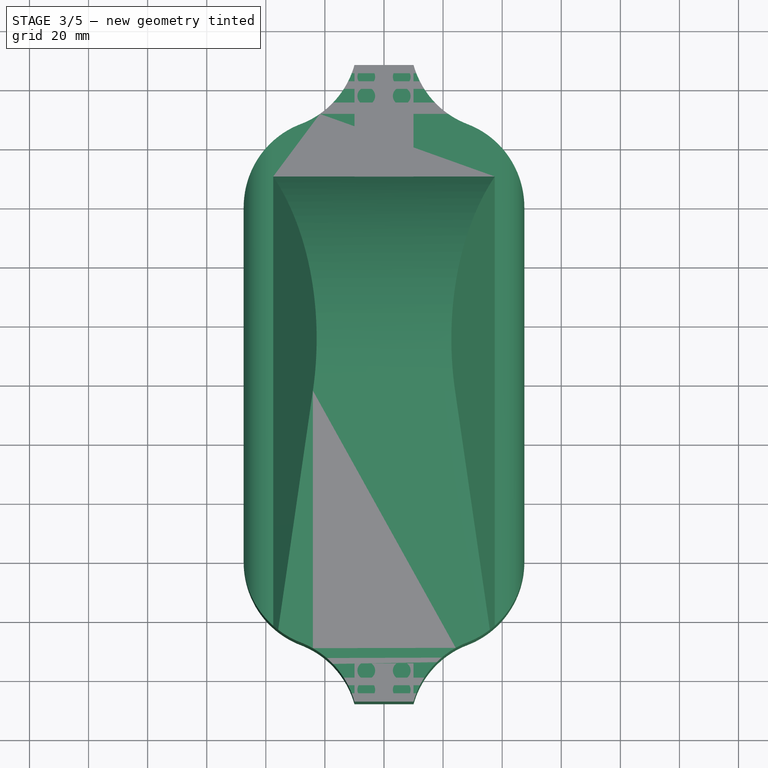
[diagram: stage 3 of 5 — top view after this stage's code; geometry added in this stage tinted green]
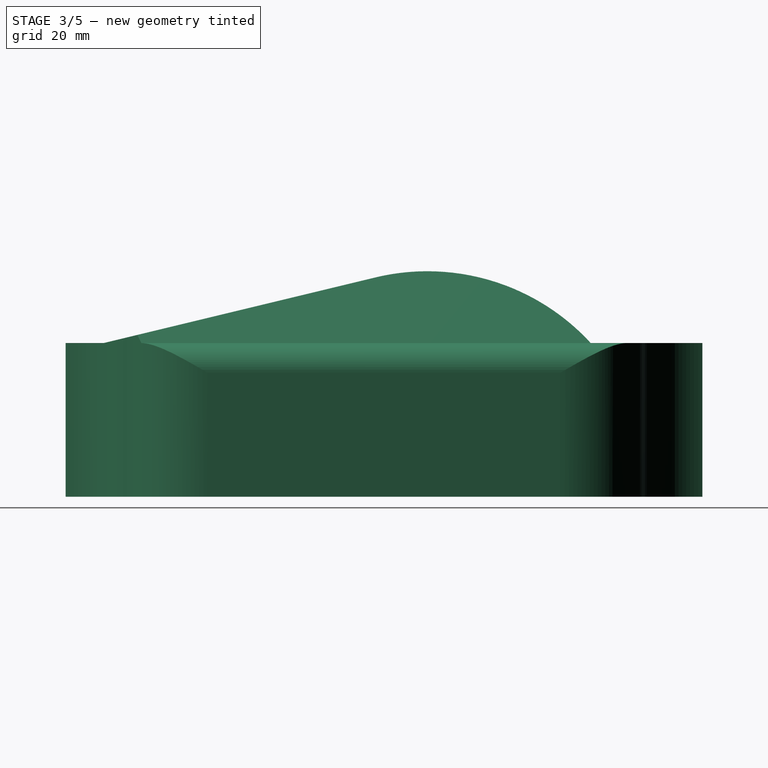
[diagram: stage 3 of 5 — right view after this stage's code; geometry added in this stage tinted green]
FEATURE [Part::SubShapeBinder] Import004  label="Import004(tower_fixing_surface)"
  BindCopyOnChange = 0
  BindMode = 0
  ClaimChildren = false
  Context = -> Body001 [Import004.]
  EdgeTolerance = 1e-06
  FillStyle = 0
  FixShape = 1
  Fuse = false
  InvalidShape = false
  MakeFace = false
  MergeEdges = true
  OffsetFill = false
  OffsetIntersection = false
  OffsetJoinType = 0
  OffsetOpenResult = false
  Outline = false
  PartialLoad = false
  Relative = true
  SplitEdges = false
  Support = -> [Body[DatumPlane.]]
  TightBound = false
  TreeRank = 89
  ValidateShape = false
  _Version = 8
FEATURE [Sketcher::SketchObject] Sketch009  label="refs"
  ArcFitTolerance = 1e-06
  AttachmentSupport = -> [YZ_Plane001]
  ExternalBSplineMaxDegree = 5
  ExternalBSplineTolerance = 0.0001
  ExternalGeometry = -> [Import,Import004]
  FixShape = 1
  FullyConstrained = true
  InternalTolerance = 1e-06
  InvalidShape = false
  MakeInternals = false
  MapMode = 5
  Placement = pos=(0,0,0) rot=(0.57735,0.57735,0.57735;2.0944rad)
  Support = -> [YZ_Plane001]
  TreeRank = 44
  ValidateShape = false
  sketch-geometry (3):
    g0: LineSegment StartX=-95 StartY=42 StartZ=0 EndX=-95 EndY=52 EndZ=0
    g1: LineSegment StartX=95 StartY=42 StartZ=0 EndX=95 EndY=52 EndZ=0
    g2: LineSegment StartX=-41.1586 StartY=65 StartZ=0 EndX=-41.1586 EndY=5 EndZ=0
  constraints (11):
    c: Vertical(g0)
    c: Vertical(g1)
    c: Horizontal(g1,g0)
    c: DistanceY(g0,g0) = 10
    c: DistanceY(g-3,g0) = 37
    c: DistanceX(g0,g-3) = 15
    c: Symmetric(g0,g1,g-2)
    c: Vertical(g2)
    c: PointOnObject(g2,g-5)
    c: DistanceY(g2,g2) = 60
    c: DistanceX(g-5,g2) = 25
FEATURE [Sketcher::SketchObject] Sketch010
  ArcFitTolerance = 1e-06
  AttachmentSupport = -> [YZ_Plane001]
  ExternalBSplineMaxDegree = 5
  ExternalBSplineTolerance = 0.0001
  ExternalGeometry = -> [Sketch009,Import]
  FixShape = 1
  FullyConstrained = true
  InternalTolerance = 1e-06
  InvalidShape = false
  MakeInternals = false
  MapMode = 5
  Placement = pos=(0,0,0) rot=(0.57735,0.57735,0.57735;2.0944rad)
  Support = -> [YZ_Plane001]
  TreeRank = 46
  ValidateShape = false
  sketch-geometry (11):
    g0: LineSegment StartX=95 StartY=52 StartZ=0 EndX=70 EndY=52 EndZ=0
    g1: ArcOfCircle CenterX=14.7026 CenterY=1.33247 CenterZ=0 NormalX=0 NormalY=0 NormalZ=1 AngleXU=0 Radius=75 StartAngle=0.741733 EndAngle=1.80771
    g2: LineSegment StartX=-95 StartY=52 StartZ=0 EndX=-107.75 EndY=52 EndZ=0
    g3: LineSegment StartX=95 StartY=52 StartZ=0 EndX=107.75 EndY=52 EndZ=0
    g4: LineSegment StartX=-2.9003 StartY=74.2375 StartZ=0 EndX=-95 EndY=52 EndZ=0
    g5: GeomPoint [constr] X=14.7026 Y=76.3325 Z=0
    g6: LineSegment StartX=-107.75 StartY=52 StartZ=0 EndX=-107.75 EndY=0 EndZ=0
    g7: LineSegment StartX=107.75 StartY=52 StartZ=0 EndX=107.75 EndY=0 EndZ=0
    g8: LineSegment StartX=107.75 StartY=0 StartZ=0 EndX=-107.75 EndY=0 EndZ=0
    g9: GeomPoint [constr] X=100 Y=5 Z=0
    g10: GeomPoint [constr] X=107.75 Y=5 Z=0
  constraints (27):
    c: Coincident(g0,g-5)
    c: Horizontal(g0)
    c: Coincident(g1,g0)
    c: Coincident(g3,g0)
    c: Horizontal(g3)
    c: Horizontal(g2)
    c: Coincident(g2,g-4) = 1.5708
    c: DistanceX(g0,g0) = 25
    c: Tangent(g4,g1) = -1.5708
    c: PointOnObject(g-3,g4)
    c: PointOnObject(g5,g1)
    c: Vertical(g5,g1)
    c: Equal(g3,g2)
    c: Coincident(g6,g2)
    c: Coincident(g7,g3)
    c: PointOnObject(g7,g-1)
    c: Coincident(g8,g6)
    c: Horizontal(g8)
    c: Vertical(g6)
    c: Vertical(g7)
    c: Coincident(g8,g7)
    c: Radius(g1) = 75
    c: Coincident(g4,g2)
    c: PointOnObject(g10,g-7)
    c: Symmetric(g-7,g-7,g9)
    c: DistanceX(g9,g10) = 7.75
    c: PointOnObject(g10,g7)
FEATURE [PartDesign::Pad] Pad005
  AddSubType = 0
  AlongSketchNormal = false
  AutoTaperInnerAngle = true
  CheckUpToFaceLimits = true
  ClaimChildren = false
  Direction = (1,-2e-16,3e-16)
  Fit = 0
  FitJoin = 0
  FixShape = 1
  InnerFit = 0
  InnerFitJoin = 0
  InvalidShape = false
  Length = 10
  Length2 = 100
  Linearize = true
  NewSolid = true
  Profile = -> Sketch010
  Refine = true
  Suppress = false
  TaperInnerAngle = 0
  TaperInnerAngleRev = 0
  TreeRank = 47
  Type = 3
  UpToFace = -> Import001
  ValidateShape = false
  _ProfileBasedVersion = 1
FEATURE [PartDesign::Mirrored] Mirrored
  AddSubType = 0
  BaseFeature = -> Pad005
  CopyShape = false
  FixShape = 1
  InvalidShape = false
  MirrorPlane = -> YZ_Plane001
  NewSolid = false
  OriginalSubs = -> [Pad005]
  Originals = -> [Pad005]
  ParallelTransform = true
  Refine = true
  SubTransform = true
  Suppress = false
  TreeRank = 49
  ValidateShape = false
  _Version = 3
FEATURE [Sketcher::SketchObject] Sketch011
  ArcFitTolerance = 1e-06
  AttachmentSupport = -> [XZ_Plane001]
  ExternalBSplineMaxDegree = 5
  ExternalBSplineTolerance = 0.0001
  ExternalGeometry = -> [Mirrored]
  FixShape = 1
  FullyConstrained = false
  InternalTolerance = 1e-06
  InvalidShape = false
  MakeInternals = false
  MapMode = 5
  Placement = pos=(0,0,0) rot=(1,0,0;1.5708rad)
  Support = -> [XZ_Plane001]
  TreeRank = 50
  ValidateShape = false
  sketch-geometry (7):
    g0: LineSegment StartX=37.5 StartY=52 StartZ=0 EndX=22.5 EndY=76.8218 EndZ=0
    g1: ArcOfCircle CenterX=37.5 CenterY=42 CenterZ=0 NormalX=0 NormalY=0 NormalZ=1 AngleXU=0 Radius=10 StartAngle=0 EndAngle=1.5708
    g2: LineSegment [constr] StartX=47.5 StartY=42 StartZ=0 EndX=47.5 EndY=22.0058 EndZ=0
    g3: LineSegment [constr] StartX=37.5 StartY=52 StartZ=0 EndX=20.7711 EndY=52 EndZ=0
    g4: LineSegment StartX=22.5 StartY=76.8218 StartZ=0 EndX=48 EndY=76.8218 EndZ=0
    g5: LineSegment StartX=48 StartY=76.8218 StartZ=0 EndX=48 EndY=42 EndZ=0
    g6: LineSegment StartX=48 StartY=42 StartZ=0 EndX=47.5 EndY=42 EndZ=0
  constraints (19):
    c: DistanceX(g0,g-3) = 25
    c: Coincident(g1,g0)
    c: Tangent(g2,g1) = 1.5708
    c: Vertical(g2)
    c: Vertical(g2,g-3)
    c: Horizontal(g0,g-3)
    c: DistanceX(g0,g-3) = 10
    c: Coincident(g3,g0)
    c: Horizontal(g3)
    c: Tangent(g1,g3)
    c: Coincident(g4,g0)
    c: Horizontal(g4)
    c: Coincident(g5,g4)
    c: Coincident(g6,g5)
    c: Coincident(g6,g1)
    c: Horizontal(g6)
    c: Vertical(g5)
    c: DistanceX(g-3,g4) = 0.5
    c: DistanceY(g-3,g4) = 0.5
FEATURE [PartDesign::Pocket] Pocket004
  AddSubType = 1
  AutoTaperInnerAngle = true
  BaseFeature = -> Mirrored
  CheckUpToFaceLimits = true
  ClaimChildren = false
  Fit = 0
  FitJoin = 0
  FixShape = 1
  InnerFit = 0
  InnerFitJoin = 0
  InvalidShape = false
  Length = 5
  Length2 = 100
  Linearize = true
  Midplane = true
  NewSolid = false
  Profile = -> Sketch011
  Refine = true
  Suppress = false
  TaperInnerAngle = 0
  TaperInnerAngleRev = 0
  TreeRank = 51
  Type = 1
  ValidateShape = false
  _ProfileBasedVersion = 1
  _Version = 1
FEATURE [PartDesign::Mirrored] Mirrored001
  AddSubType = 0
  BaseFeature = -> Pocket004
  CopyShape = false
  FixShape = 1
  InvalidShape = false
  MirrorPlane = -> Sketch011 [V_Axis]
  NewSolid = false
  OriginalSubs = -> [Pocket004]
  Originals = -> [Pocket004]
  ParallelTransform = true
  Refine = true
  SubTransform = true
  Suppress = false
  TreeRank = 52
  ValidateShape = false
  _Version = 3
FEATURE [Sketcher::SketchObject] Sketch013
  ArcFitTolerance = 1e-06
  AttachmentSupport = -> [XY_Plane001]
  ExternalBSplineMaxDegree = 5
  ExternalBSplineTolerance = 0.0001
  ExternalGeometry = -> [Mirrored001,Import]
  FixShape = 1
  FullyConstrained = false
  InternalTolerance = 1e-06
  InvalidShape = false
  MakeInternals = false
  MapMode = 5
  Support = -> [XY_Plane001]
  TreeRank = 56
  ValidateShape = false
  sketch-geometry (21):
    g0: LineSegment StartX=-10 StartY=-107.75 StartZ=0 EndX=10 EndY=-107.75 EndZ=0
    g1: LineSegment StartX=-10 StartY=107.75 StartZ=0 EndX=10 EndY=107.75 EndZ=0
    g2: ArcOfCircle CenterX=38.9065 CenterY=115.776 CenterZ=0 NormalX=0 NormalY=0 NormalZ=1 AngleXU=0 Radius=30 StartAngle=3.41241 EndAngle=4.34757
    g3: ArcOfCircle CenterX=17.5 CenterY=59.7243 CenterZ=0 NormalX=0 NormalY=0 NormalZ=1 AngleXU=0 Radius=30 StartAngle=0 EndAngle=1.20598
    g4: ArcOfCircle CenterX=-38.9065 CenterY=115.776 CenterZ=0 NormalX=0 NormalY=0 NormalZ=1 AngleXU=0 Radius=30 StartAngle=5.0772 EndAngle=6.01236
    g5: ArcOfCircle CenterX=-17.5 CenterY=59.7243 CenterZ=0 NormalX=0 NormalY=0 NormalZ=1 AngleXU=0 Radius=30 StartAngle=1.93561 EndAngle=3.14159
    g6: ArcOfCircle CenterX=-38.9065 CenterY=-115.776 CenterZ=0 NormalX=0 NormalY=0 NormalZ=1 AngleXU=0 Radius=30 StartAngle=0.270822 EndAngle=1.20598
    g7: ArcOfCircle CenterX=-17.5 CenterY=-59.7243 CenterZ=0 NormalX=0 NormalY=0 NormalZ=1 AngleXU=0 Radius=30 StartAngle=3.14159 EndAngle=4.34757
    g8: ArcOfCircle CenterX=38.9065 CenterY=-115.776 CenterZ=0 NormalX=0 NormalY=0 NormalZ=1 AngleXU=0 Radius=30 StartAngle=1.93561 EndAngle=2.87077
    g9: ArcOfCircle CenterX=17.5 CenterY=-59.7243 CenterZ=0 NormalX=0 NormalY=0 NormalZ=1 AngleXU=0 Radius=30 StartAngle=5.0772 EndAngle=6.28319
    g10: LineSegment [constr] StartX=-47.5 StartY=59.7243 StartZ=0 EndX=-47.5 EndY=32.1586 EndZ=0
    g11: LineSegment StartX=-47.5 StartY=59.7243 StartZ=0 EndX=-97.5 EndY=59.7243 EndZ=0
    g12: LineSegment StartX=-97.5 StartY=59.7243 StartZ=0 EndX=-97.5 EndY=159.724 EndZ=0
    g13: LineSegment StartX=-97.5 StartY=159.724 StartZ=0 EndX=97.5 EndY=159.724 EndZ=0
    g14: LineSegment StartX=97.5 StartY=159.724 StartZ=0 EndX=97.5 EndY=59.7243 EndZ=0
    g15: LineSegment StartX=97.5 StartY=59.7243 StartZ=0 EndX=47.5 EndY=59.7243 EndZ=0
    g16: LineSegment StartX=47.5 StartY=-59.7243 StartZ=0 EndX=97.5 EndY=-59.7243 EndZ=0
    g17: LineSegment StartX=-47.5 StartY=-59.7243 StartZ=0 EndX=-97.5 EndY=-59.7243 EndZ=0
    g18: LineSegment StartX=-97.5 StartY=-59.7243 StartZ=0 EndX=-97.5 EndY=-159.724 EndZ=0
    g19: LineSegment StartX=-97.5 StartY=-159.724 StartZ=0 EndX=97.5 EndY=-159.724 EndZ=0
    g20: LineSegment StartX=97.5 StartY=-159.724 StartZ=0 EndX=97.5 EndY=-59.7243 EndZ=0
  constraints (63):
    c: PointOnObject(g0,g-4)
    c: PointOnObject(g0,g-4)
    c: PointOnObject(g1,g-3)
    c: PointOnObject(g1,g-3)
    c: Equal(g-5,g1)
    c: Equal(g1,g0)
    c: Vertical(g-5,g1)
    c: Vertical(g1,g0)
    c: Coincident(g2,g1)
    c: Coincident(g4,g1)
    c: Coincident(g6,g0)
    c: Coincident(g8,g0)
    c: Tangent(g9,g8) = 1.5708
    c: Tangent(g7,g6) = 1.5708
    c: Tangent(g5,g4) = 1.5708
    c: Tangent(g3,g2) = 1.5708
    c: Equal(g2,g4)
    c: Equal(g4,g6)
    c: Equal(g6,g8)
    c: Equal(g9,g7)
    c: Equal(g5,g3)
    c: Vertical(g-6,g5)
    c: Vertical(g-7,g3)
    c: Vertical(g3,g9)
    c: Horizontal(g5,g3)
    c: Symmetric(g5,g7,g-1)
    c: Horizontal(g7,g9)
    c: Horizontal(g8,g6)
    c: Horizontal(g4,g2)
    c: Symmetric(g4,g6,g-1)
    c: Radius(g4) = 30
    c: Radius(g5) = 30
    c: Vertical(g10)
    c: Tangent(g10,g5) = -1.5708
    c: DistanceY(g0,g6) = 20
    c: Coincident(g11,g5)
    c: Horizontal(g11)
    c: Coincident(g12,g11)
    c: Vertical(g12)
    c: Coincident(g13,g12)
    c: Horizontal(g13)
    c: Coincident(g14,g13)
    c: Vertical(g14)
    c: Coincident(g15,g14)
    c: Coincident(g15,g3)
    c: Horizontal(g15)
    c: Coincident(g16,g9)
    c: Horizontal(g16)
    c: Coincident(g17,g7)
    c: Coincident(g18,g17)
    c: Vertical(g18)
    c: Coincident(g19,g18)
    c: Horizontal(g19)
    c: Coincident(g20,g19)
    c: Coincident(g20,g16)
    c: Vertical(g20)
    c: Horizontal(g17)
    c: Equal(g11,g15)
    c: Equal(g15,g16)
    c: Equal(g16,g17)
    c: Equal(g12,g18)
    c: DistanceY(g18,g18) = 100
    c: DistanceX(g17,g17) = 50
FEATURE [PartDesign::Pocket] Pocket006
  AddSubType = 1
  AutoTaperInnerAngle = true
  BaseFeature = -> Mirrored001
  CheckUpToFaceLimits = true
  ClaimChildren = false
  Fit = 0
  FitJoin = 0
  FixShape = 1
  InnerFit = 0
  InnerFitJoin = 0
  InvalidShape = false
  Length = 5
  Length2 = 100
  Linearize = true
  Midplane = true
  NewSolid = false
  Profile = -> Sketch013
  Refine = true
  Suppress = false
  TaperInnerAngle = 0
  TaperInnerAngleRev = 0
  TreeRank = 57
  Type = 1
  ValidateShape = false
  _ProfileBasedVersion = 1
  _Version = 1
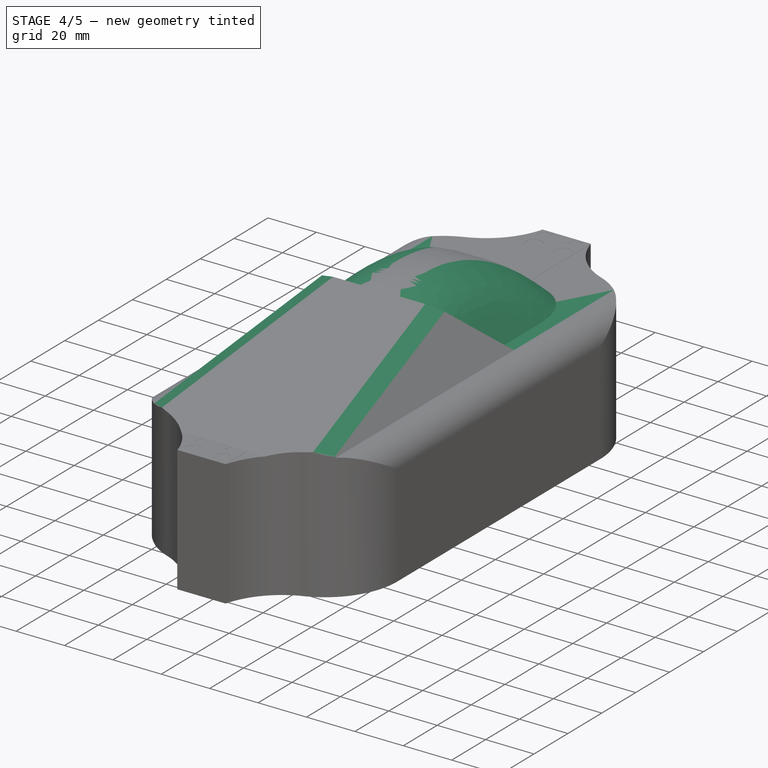
[diagram: stage 4 of 5 — iso view after this stage's code; geometry added in this stage tinted green]
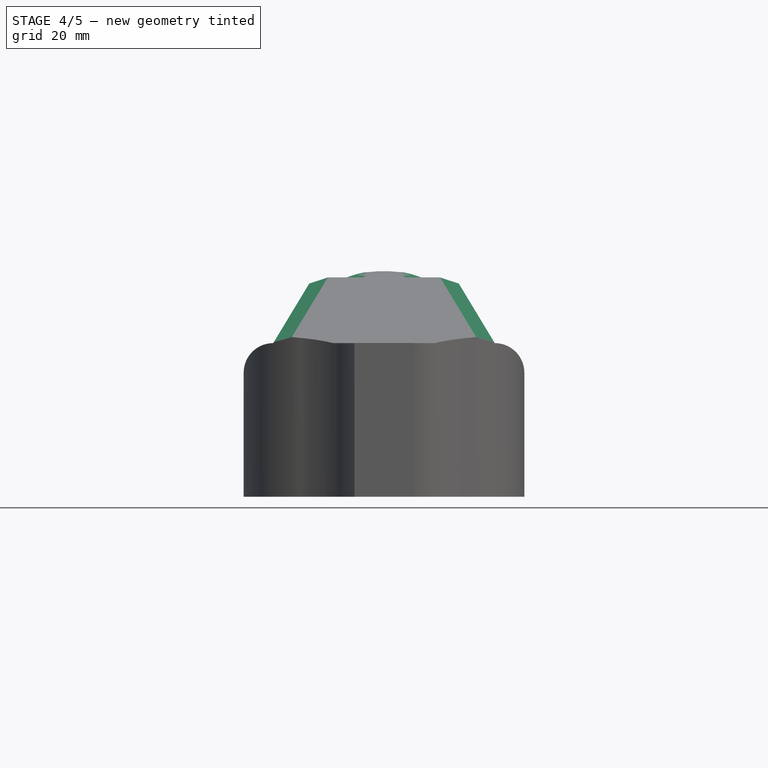
[diagram: stage 4 of 5 — front view after this stage's code; geometry added in this stage tinted green]
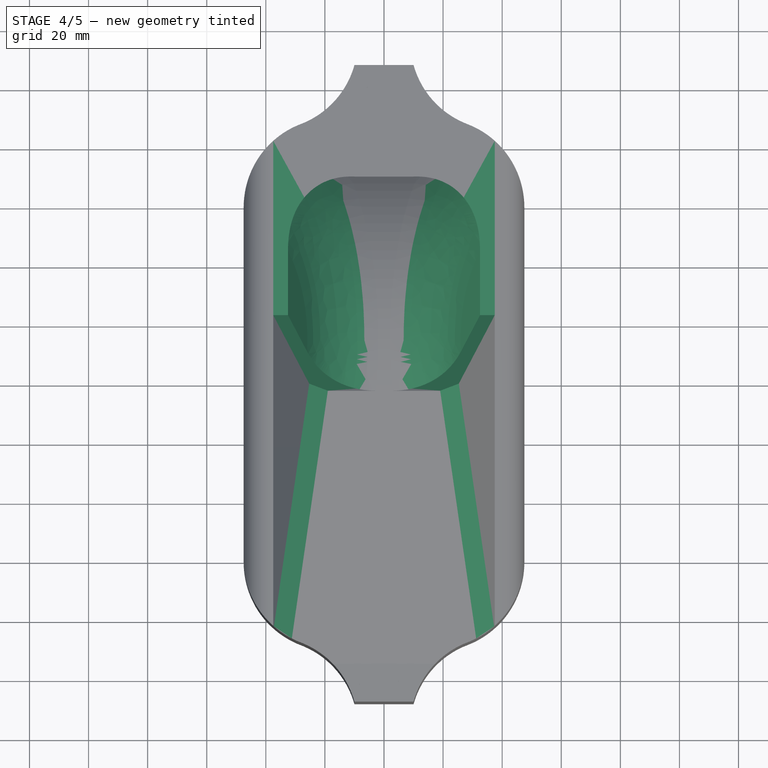
[diagram: stage 4 of 5 — top view after this stage's code; geometry added in this stage tinted green]
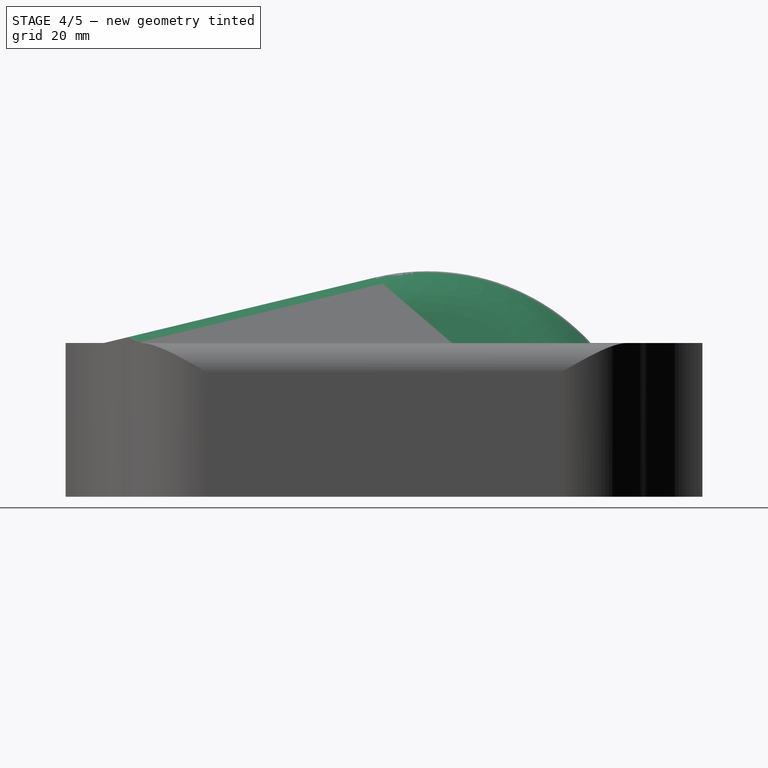
[diagram: stage 4 of 5 — right view after this stage's code; geometry added in this stage tinted green]
FEATURE [Sketcher::SketchObject] Sketch017
  ArcFitTolerance = 1e-06
  AttachmentSupport = -> [Pocket006]
  ExternalBSplineMaxDegree = 5
  ExternalBSplineTolerance = 0.0001
  ExternalGeometry = -> [Pocket006]
  FixShape = 1
  FullyConstrained = true
  InternalTolerance = 1e-06
  InvalidShape = false
  MakeInternals = false
  MapMode = 5
  Placement = pos=(-50.4868,-6.8e-15,30.5096) rot=(0.440972,-0.440972,-0.781721;1.8146rad)
  Support = -> [Pocket006]
  TreeRank = 64
  ValidateShape = false
  sketch-geometry (4):
    g0: LineSegment StartX=2.9003 StartY=51.0922 StartZ=0 EndX=-23.0822 EndY=25.1097 EndZ=0
    g1: LineSegment StartX=-23.0822 StartY=25.1097 StartZ=0 EndX=-70 EndY=25.1097 EndZ=0
    g2: LineSegment StartX=-70 StartY=25.1097 StartZ=0 EndX=-70 EndY=101.092 EndZ=0
    g3: LineSegment StartX=-70 StartY=101.092 StartZ=0 EndX=2.9003 EndY=51.0922 EndZ=0
  constraints (10):
    c: Coincident(g0,g-4)
    c: PointOnObject(g0,g-3)
    c: Coincident(g1,g0)
    c: Coincident(g2,g1)
    c: Coincident(g3,g2)
    c: Coincident(g3,g0)
    c: Coincident(g1,g-4)
    c: Vertical(g2)
    c: DistanceY(g0,g2) = 50
    c: Angle(g0,g1) = 2.35619
FEATURE [Sketcher::SketchObject] Sketch018
  ArcFitTolerance = 1e-06
  AttachmentSupport = -> [Pocket006,XZ_Plane001]
  ExternalBSplineMaxDegree = 5
  ExternalBSplineTolerance = 0.0001
  FixShape = 1
  FullyConstrained = true
  InternalTolerance = 1e-06
  InvalidShape = false
  MakeInternals = false
  MapMode = 6
  Placement = pos=(-37.5,70,52) rot=(0.57735,-0.57735,0.57735;2.0944rad)
  Support = -> [Pocket006,XZ_Plane001]
  TreeRank = 65
  ValidateShape = false
  sketch-geometry (1):
    g0: LineSegment StartX=0 StartY=0 StartZ=0 EndX=0 EndY=-5 EndZ=0
  constraints (3):
    c: Coincident(g0,g-1)
    c: PointOnObject(g0,g-2)
    c: DistanceY(g0,g0) = 5
FEATURE [PartDesign::SubtractivePipe] Pipe
  AddSubType = 1
  AuxilleryCurvelinear = true
  AuxillerySpineTangent = false
  BaseFeature = -> Pocket006
  Binormal = (0,0,0)
  ClaimChildren = false
  Fit = 0
  FitJoin = 0
  FixShape = 1
  InnerFit = 0
  InnerFitJoin = 0
  InvalidShape = false
  Linearize = true
  Mode = 0
  MoveProfile = false
  NewSolid = false
  Profile = -> Sketch017
  Refine = true
  RotateProfile = false
  Spine = -> Sketch018 [Edge1]
  SpineTangent = false
  Suppress = false
  Transformation = 0
  Transition = 1
  TreeRank = 66
  ValidateShape = false
  _ProfileBasedVersion = 2
FEATURE [PartDesign::Fillet] Fillet001
  AddSubType = 0
  Base = -> Pipe [Edge54]
  BaseFeature = -> Pipe
  FixShape = 1
  InvalidShape = false
  NewSolid = false
  Radius = 28
  Refine = true
  SupportTransform = false
  Suppress = false
  TreeRank = 67
  ValidateShape = false
FEATURE [PartDesign::Chamfer] Chamfer
  AddSubType = 0
  Angle = 45
  Base = -> Fillet001 [Edge6]
  BaseFeature = -> Fillet001
  ChamferType = 1
  FixShape = 1
  FlipDirection = false
  InvalidShape = false
  NewSolid = false
  Refine = true
  Size = 5
  Size2 = 3
  SupportTransform = false
  Suppress = false
  TreeRank = 71
  ValidateShape = false
FEATURE [PartDesign::Mirrored] Mirrored002
  AddSubType = 0
  BaseFeature = -> Chamfer
  CopyShape = false
  FixShape = 1
  InvalidShape = false
  MirrorPlane = -> YZ_Plane001
  NewSolid = false
  OriginalSubs = -> [Pipe,Fillet001,Chamfer]
  Originals = -> [Pipe,Fillet001,Chamfer]
  ParallelTransform = true
  Refine = true
  SubTransform = true
  Suppress = false
  TreeRank = 68
  ValidateShape = false
  _Version = 3
FEATURE [PartDesign::Thickness] Thickness
  AddSubType = 0
  Base = -> Mirrored002 [Face18]
  BaseFeature = -> Mirrored002
  FixShape = 1
  Intersection = false
  InvalidShape = false
  Join = 0
  Mode = 0
  NewSolid = false
  Refine = true
  Reversed = true
  SupportTransform = false
  Suppress = false
  TreeRank = 53
  ValidateShape = false
  Value = 1
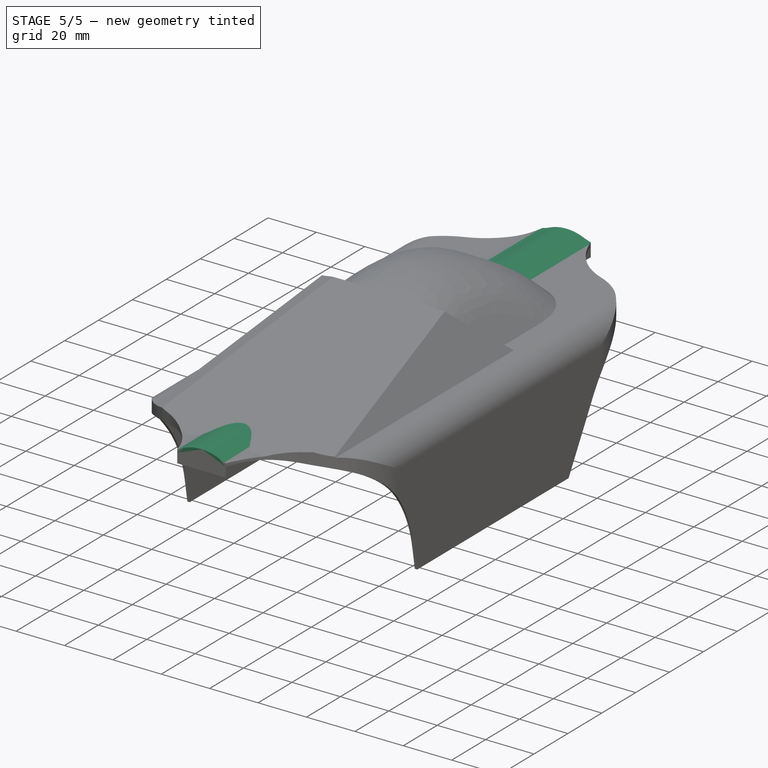
[diagram: stage 5 of 5 — iso view after this stage's code; geometry added in this stage tinted green]
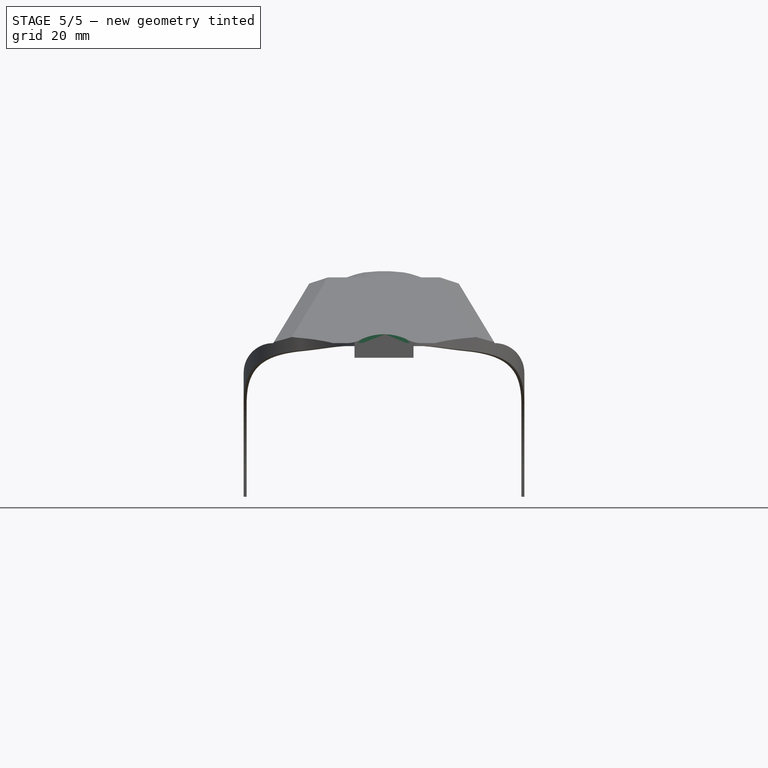
[diagram: stage 5 of 5 — front view after this stage's code; geometry added in this stage tinted green]
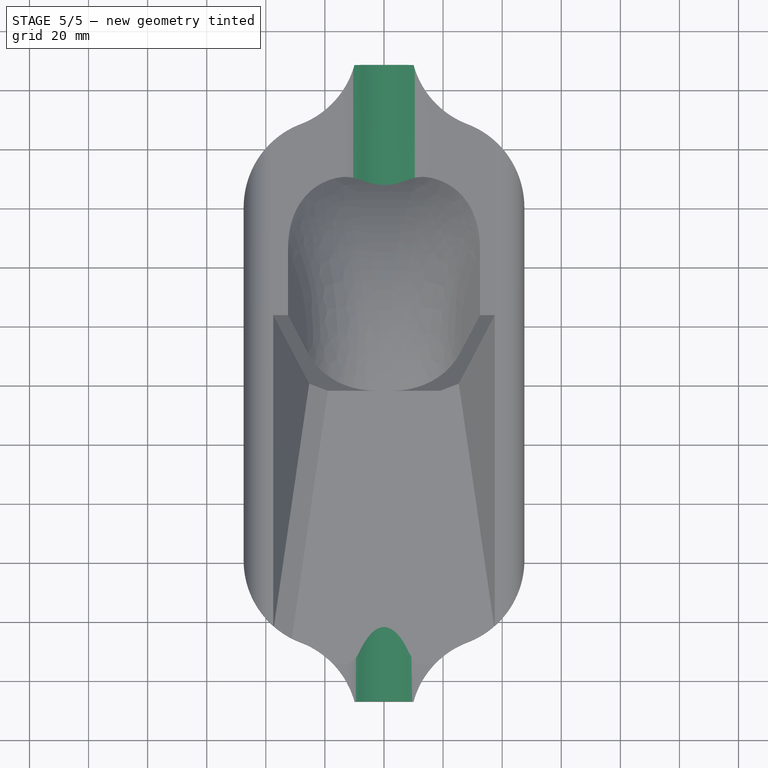
[diagram: stage 5 of 5 — top view after this stage's code; geometry added in this stage tinted green]
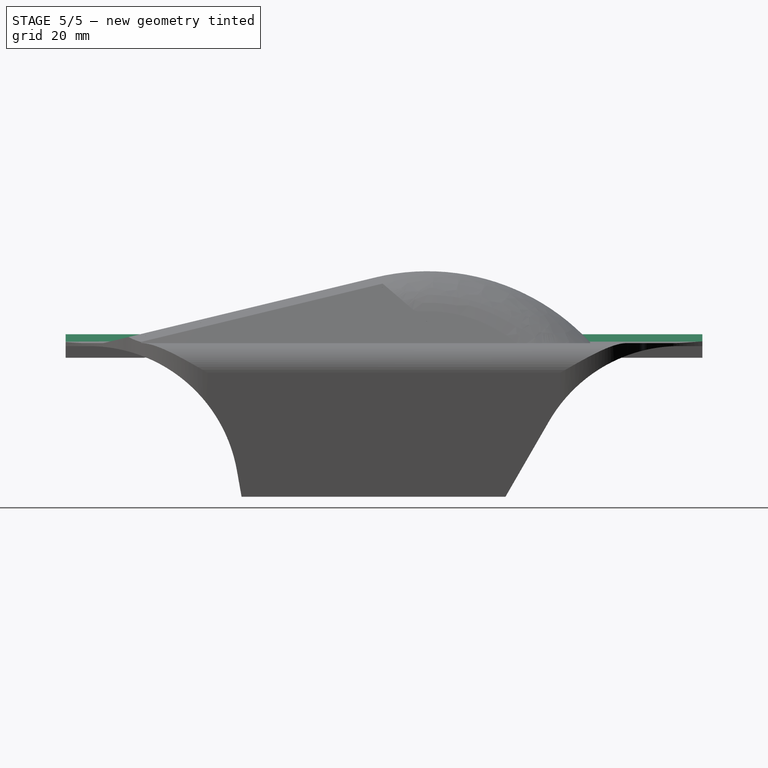
[diagram: stage 5 of 5 — right view after this stage's code; geometry added in this stage tinted green]
FEATURE [Sketcher::SketchObject] Sketch014
  ArcFitTolerance = 1e-06
  AttachmentSupport = -> [YZ_Plane001]
  ExternalBSplineMaxDegree = 5
  ExternalBSplineTolerance = 0.0001
  ExternalGeometry = -> [Thickness,Import]
  FixShape = 1
  FullyConstrained = true
  InternalTolerance = 1e-06
  InvalidShape = false
  MakeInternals = false
  MapMode = 5
  Placement = pos=(0,0,0) rot=(0.57735,0.57735,0.57735;2.0944rad)
  Support = -> [YZ_Plane001]
  TreeRank = 58
  ValidateShape = false
  sketch-geometry (10):
    g0: ArcOfCircle CenterX=-100 CenterY=-3.05e-14 CenterZ=0 NormalX=0 NormalY=0 NormalZ=1 AngleXU=0 Radius=51 StartAngle=0.174533 EndAngle=1.5708
    g1: ArcOfCircle CenterX=100 CenterY=2.5e-14 CenterZ=0 NormalX=0 NormalY=0 NormalZ=1 AngleXU=0 Radius=51 StartAngle=1.5708 EndAngle=2.61799
    g2: LineSegment StartX=100 StartY=51 StartZ=0 EndX=140 EndY=51 EndZ=0
    g3: LineSegment StartX=-100 StartY=51 StartZ=0 EndX=-140 EndY=51 EndZ=0
    g4: LineSegment StartX=-140 StartY=51 StartZ=0 EndX=-140 EndY=0 EndZ=0
    g5: LineSegment StartX=140 StartY=51 StartZ=0 EndX=140 EndY=0 EndZ=0
    g6: LineSegment StartX=-49.7748 StartY=8.85606 StartZ=0 EndX=-48.2132 EndY=0 EndZ=0
    g7: LineSegment StartX=-48.2132 StartY=0 StartZ=0 EndX=-140 EndY=0 EndZ=0
    g8: LineSegment StartX=55.8327 StartY=25.5 StartZ=0 EndX=41.1103 EndY=0 EndZ=0
    g9: LineSegment StartX=41.1103 StartY=0 StartZ=0 EndX=140 EndY=0 EndZ=0
  constraints (26):
    c: Symmetric(g-6,g-6,g1)
    c: Symmetric(g-5,g-5,g0)
    c: Horizontal(g3)
    c: Horizontal(g2)
    c: Equal(g1,g0)
    c: PointOnObject(g-3,g3)
    c: Tangent(g3,g0) = -1.5708
    c: Coincident(g4,g3)
    c: PointOnObject(g4,g-1)
    c: Vertical(g4)
    c: Coincident(g5,g2)
    c: PointOnObject(g5,g-1)
    c: Vertical(g5)
    c: Equal(g3,g2)
    c: DistanceX(g3,g3) = 40
    c: Tangent(g2,g1) = 1.5708
    c: PointOnObject(g6,g-1)
    c: Coincident(g7,g6)
    c: Coincident(g7,g4)
    c: PointOnObject(g8,g-1)
    c: Coincident(g9,g8)
    c: Coincident(g9,g5)
    c: Tangent(g8,g1) = -1.5708
    c: Tangent(g6,g0) = 1.5708
    c: Angle(g6,g7) = 1.39626
    c: Angle(g9,g8) = 1.0472
FEATURE [PartDesign::Pocket] Pocket007
  AddSubType = 1
  AutoTaperInnerAngle = true
  BaseFeature = -> Thickness
  CheckUpToFaceLimits = true
  ClaimChildren = false
  Fit = 0
  FitJoin = 0
  FixShape = 1
  InnerFit = 0
  InnerFitJoin = 0
  InvalidShape = false
  Length = 5
  Length2 = 100
  Linearize = true
  Midplane = true
  NewSolid = false
  Profile = -> Sketch014
  Refine = true
  Suppress = false
  TaperInnerAngle = 0
  TaperInnerAngleRev = 0
  TreeRank = 59
  Type = 1
  ValidateShape = false
  _ProfileBasedVersion = 1
  _Version = 1
FEATURE [Sketcher::SketchObject] Sketch015
  ArcFitTolerance = 1e-06
  AttachmentSupport = -> [Pocket007]
  ExternalBSplineMaxDegree = 5
  ExternalBSplineTolerance = 0.0001
  ExternalGeometry = -> [Pocket007]
  FixShape = 1
  FullyConstrained = true
  InternalTolerance = 1e-06
  InvalidShape = false
  MakeInternals = false
  MapMode = 5
  Placement = pos=(1.61e-14,107.75,-1.9e-14) rot=(0,0.707107,0.707107;3.14159rad)
  Support = -> [Pocket007]
  TreeRank = 60
  ValidateShape = false
  sketch-geometry (2):
    g0: ArcOfCircle CenterX=1.04e-14 CenterY=36.8333 CenterZ=0 NormalX=0 NormalY=0 NormalZ=1 AngleXU=0 Radius=18.1667 StartAngle=0.987883 EndAngle=2.15371
    g1: GeomPoint [constr] X=0 Y=55 Z=0
  constraints (5):
    c: Coincident(g0,g-3)
    c: Coincident(g0,g-3)
    c: PointOnObject(g1,g0)
    c: PointOnObject(g1,g-2)
    c: DistanceY(g0,g1) = 3
FEATURE [PartDesign::Pad] Pad006
  AddSubType = 0
  AlongSketchNormal = false
  AutoTaperInnerAngle = true
  BaseFeature = -> Pocket007
  CheckUpToFaceLimits = true
  ClaimChildren = false
  Direction = (1e-16,1,-2e-16)
  Fit = 0
  FitJoin = 0
  FixShape = 1
  InnerFit = 0
  InnerFitJoin = 0
  InvalidShape = false
  Length = 10
  Length2 = 100
  Linearize = true
  NewSolid = false
  Profile = -> Sketch015
  Refine = true
  Suppress = false
  TaperInnerAngle = 0
  TaperInnerAngleRev = 0
  TreeRank = 61
  Type = 3
  UpToFace = -> Pocket007 [Face73]
  ValidateShape = false
  _ProfileBasedVersion = 1
FEATURE [Sketcher::SketchObject] Sketch016
  ArcFitTolerance = 1e-06
  AttachmentSupport = -> [Pad006]
  ExternalBSplineMaxDegree = 5
  ExternalBSplineTolerance = 0.0001
  ExternalGeometry = -> [Pad006]
  FixShape = 1
  FullyConstrained = true
  InternalTolerance = 1e-06
  InvalidShape = false
  MakeInternals = false
  MapMode = 5
  Placement = pos=(-1.61e-14,-107.75,1.9e-14) rot=(1,0,0;1.5708rad)
  Support = -> [Pad006]
  TreeRank = 62
  ValidateShape = false
  sketch-geometry (1):
    g0: LineSegment StartX=10 StartY=52 StartZ=0 EndX=-10 EndY=52 EndZ=0
  constraints (2):
    c: Coincident(g0,g-3)
    c: Coincident(g0,g-3)
FEATURE [PartDesign::Pad] Pad007
  AddSubType = 0
  AlongSketchNormal = false
  AutoTaperInnerAngle = true
  BaseFeature = -> Pad006
  CheckUpToFaceLimits = true
  ClaimChildren = false
  Direction = (-1e-16,-1,2e-16)
  Fit = 0
  FitJoin = 0
  FixShape = 1
  InnerFit = 0
  InnerFitJoin = 0
  InvalidShape = false
  Length = 10
  Length2 = 100
  Linearize = true
  NewSolid = false
  Profile = -> Sketch016
  Refine = true
  Suppress = false
  TaperInnerAngle = 0
  TaperInnerAngleRev = 0
  TreeRank = 63
  Type = 3
  UpToFace = -> Pad006 [Face77]
  ValidateShape = false
  _ProfileBasedVersion = 1
FEATURE [PartDesign::Fillet] Fillet002
  AddSubType = 0
  Base = -> Pad007 [Edge161,Edge162]
  BaseFeature = -> Pad007
  FixShape = 1
  InvalidShape = false
  NewSolid = false
  Radius = 20
  Refine = true
  SupportTransform = false
  Suppress = false
  TreeRank = 69
  ValidateShape = false
FEATURE [PartDesign::Fillet] Fillet003
  AddSubType = 0
  Base = -> Fillet002 [Edge203,Edge205]
  BaseFeature = -> Fillet002
  FixShape = 1
  InvalidShape = false
  NewSolid = false
  Radius = 10
  Refine = true
  SupportTransform = false
  Suppress = false
  TreeRank = 70
  ValidateShape = false
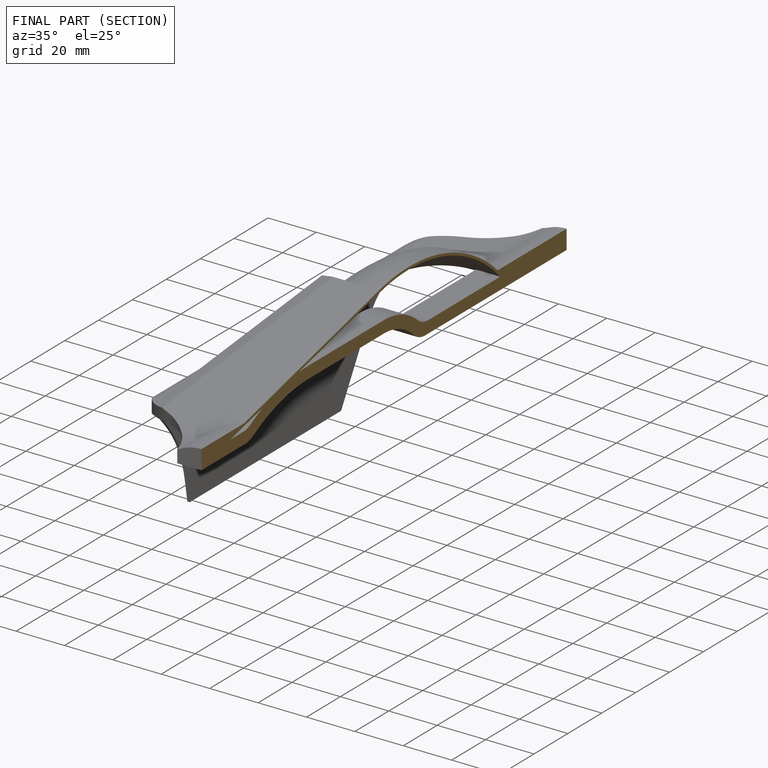
[diagram: finished part — half-section view (interior)]
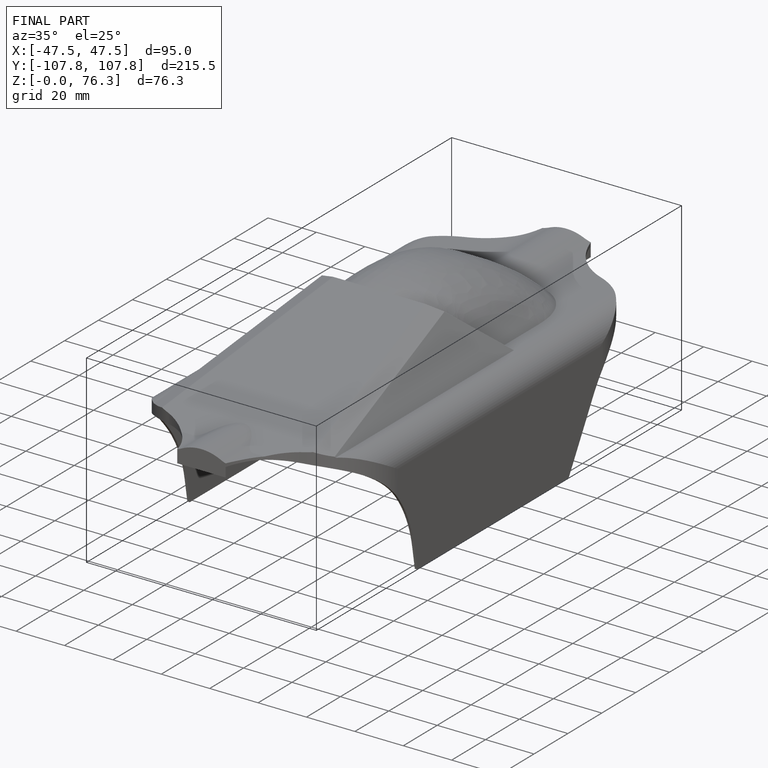
[diagram: finished part — iso view with bounding-box wireframe]
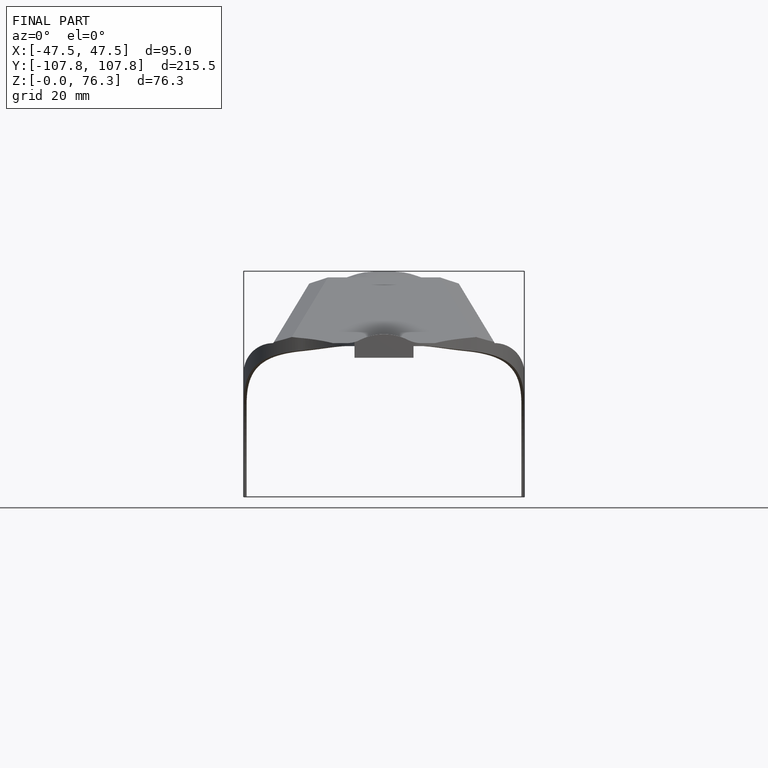
[diagram: finished part — front view with bounding-box wireframe]
